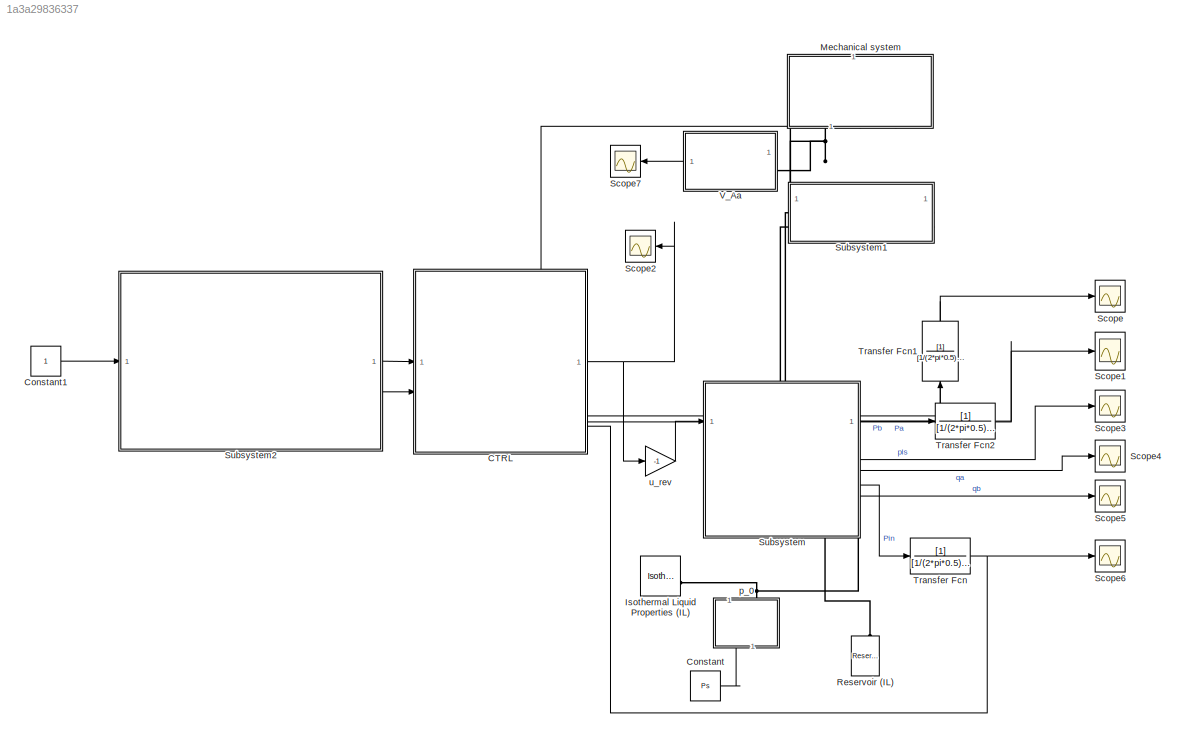
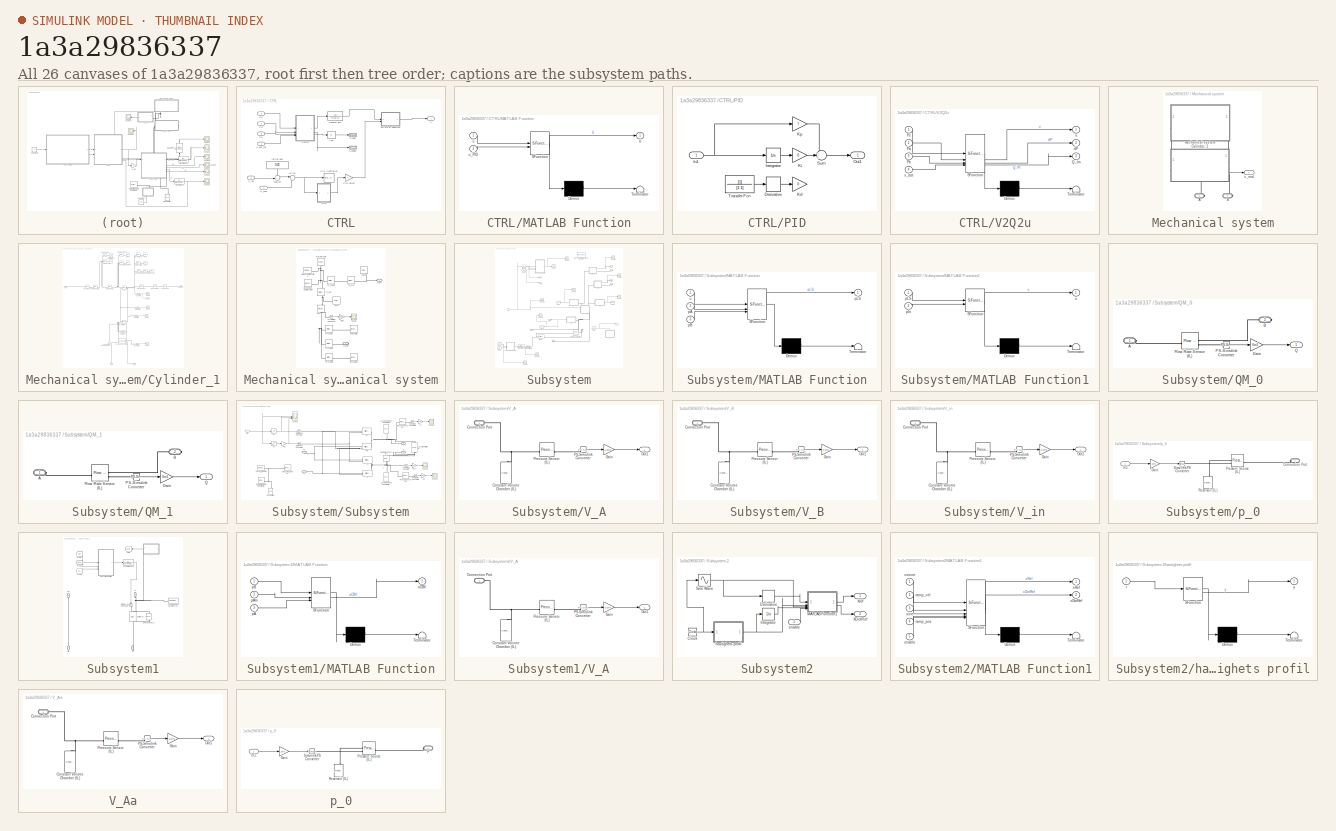
[diagram: thumbnail index - all 26 canvases of the model, root first then tree order]
MODEL slx_1a3a29836337
KIND model
CONFIG AbsTol = auto
CONFIG EnableMultiTasking = off
CONFIG FixedStep = auto
CONFIG MaxStep = auto
CONFIG MinStep = auto
CONFIG RelTol = 1e-5
CONFIG SampleTimeConstraint = Unconstrained
CONFIG SolverName = VariableStepAuto
CONFIG StartTime = 0.0
CONFIG StopTime = 20
WORKSPACE source: MATLAB code (in-file)
WORKSPACE rho_l = 850
WORKSPACE Ps = 110
WORKSPACE pRat = 30e5  (= 3000000)
WORKSPACE Cd = 0.6
WORKSPACE QRat = 270/6e4  (= 0.0045)
WORKSPACE Admax = QRat/Cd/(2/rho_l*pRat/2)^0.5  (= 0.00012624381173)
WORKSPACE sC_1 = 0.45
WORKSPACE L0C_1 = 0.4
WORKSPACE x0C_1 = 0.2
WORKSPACE dC_1 = 0.065
WORKSPACE dRC_1 = 0.035
WORKSPACE dOC_1 = dC_1 + dC_1/4  (= 0.08125)
WORKSPACE LC_1 = sC_1 + L0C_1/3  (= 0.583333333333)
WORKSPACE tEPC_1 = L0C_1/6  (= 0.0666666666667)
WORKSPACE dJC_1 = L0C_1/3  (= 0.133333333333)
WORKSPACE LJC_1 = dRC_1  (= 0.035)
WORKSPACE LRC_1 = sC_1 + tEPC_1  (= 0.516666666667)
WORKSPACE tPC_1 = L0C_1/3  (= 0.133333333333)
WORKSPACE AC_1 = pi*dC_1^2/4  (= 0.00331830724035)
WORKSPACE ARC_1 = pi*dRC_1^2/4  (= 0.000962112750162)
WORKSPACE AAC_1 = AC_1 - ARC_1  (= 0.00235619449019)
WORKSPACE Initial_Pos = x0C_1-0.116  (= 0.084)
WORKSPACE g = 9.81
WORKSPACE theta1_init = 0*pi/180  (= 0)
WORKSPACE thetaDot1_init = 0
WORKSPACE L1 = 3.625
WORKSPACE rho = 7800
WORKSPACE L4 = 0.229
WORKSPACE Lg4x = L1-L4/2  (= 3.5105)
WORKSPACE Lg4y = 0.08157
WORKSPACE abx = 0.730-0.100-0.080  (= 0.55)
WORKSPACE aby = (0.223-0.075)  (= 0.148)
WORKSPACE g = 9.81
WORKSPACE G1 = 100*g  (= 981)
WORKSPACE G4 = (4*76+16)*g  (= 3139.2)
WORKSPACE G = 440*g  (= 4316.4)
WORKSPACE Gx = 3.03499
WORKSPACE Gy = 0.140  (= 0.14)
WORKSPACE Cy = -1.040  (= -1.04)
WORKSPACE Cx = 0.427
WORKSPACE ang_CA = atan2(Cy,Cx)
WORKSPACE ang_k = atan2(aby,abx)
WORKSPACE b = abs(sqrt(Cy^2+Cx^2))
WORKSPACE c = abs(sqrt(abx^2+aby^2))
WORKSPACE L3_min = 0.772
WORKSPACE L3 = L3_min+Initial_Pos  (= 0.856)
WORKSPACE ang_C = acos((L3^2+b^2-c^2)/(2*L3*b))
WORKSPACE beta = ang_CA + pi - ang_C
WORKSPACE bx = L3*cos(beta) + Cx
WORKSPACE by = L3*sin(beta) + Cy
WORKSPACE ang_AB = atan2(by,bx)
WORKSPACE gamma = ang_AB + ang_k
WORKSPACE code: r_cb = [L3*cos(beta);L3*sin(beta);0];
WORKSPACE code: r_ab = [bx; by; 0 ];
WORKSPACE code: crs_abp = cross(r_ab, [cos(beta); sin(beta);0]);
WORKSPACE matrix = [1, 0, cos(beta)
WORKSPACE code: 0, 1, sin(beta);
WORKSPACE code: 0, 0, r_ab(1)*sin(beta) - r_ab(2)*cos(beta)];
WORKSPACE code: right = [0;(G1+G4);G*(Gx*cos(gamma)-Gy*sin(gamma))];%(G1*cos(gamma)*L1/2+G4*(cos(gamma)*Lg4x-sin(gamma)*Lg4y))
WORKSPACE ANS = inv(matrix)*right
WORKSPACE Ax = ANS(1)
WORKSPACE Ay = ANS(2)
WORKSPACE Fl = ANS(3)
WORKSPACE dP_0 = 7e5  (= 700000)
WORKSPACE phi = 0.7130  (= 0.713)
WORKSPACE A = AC_1  (= 0.00331830724035)
WORKSPACE Ar = AAC_1  (= 0.00235619449019)
WORKSPACE BW = 0
WORKSPACE SpoolTravel = 7
WORKSPACE a = (SpoolTravel-BW)/25  (= 0.28)
WORKSPACE DeadUp = 0.13
WORKSPACE DeadDown = 0.12
WORKSPACE F_friction = 1133.4
WORKSPACE U_down_vec = [0, DeadDown ,0.2, 0.4, 0.6, 0.7, 0.8, 1.0]
WORKSPACE K_down = [1e-5,1e-5,0.75,2.17,3.39,3.99,4.55,4.84]/(6e4 * sqrt(1e5))
WORKSPACE Ad_down = (K_down/(Cd*sqrt(2/rho_l))) *1e6
WORKSPACE U_up_vec = [0, DeadUp ,0.2, 0.4, 0.6, 0.7, 0.8, 1.0]
WORKSPACE K_up = [1e-5,1e-5,0.78,2.29,3.42,4.59,5.09,5.71]/(6e4 * sqrt(1e5))
WORKSPACE Ad_up = (K_up/(Cd*sqrt(2/rho_l))) *1e6
WORKSPACE Amp = 0.1
WORKSPACE Mean = Amp  (= 0.1)
BLOCK [SubSystem] CTRL
  PortSchema = {"entries":[{"content":{"sides":[{"content":{"connectorIds":["In1","In2"]},"type":"ConnectorPlacement.EquallySpacedRectSide","uuid":"e7dc98bc-0c39-42fc-9d44-5c528a861935"},{"content":{"connectorIds":["In4","In5","Out1","In6"],"side":"RIGHT"},"type":"ConnectorPlacement.EquallySpacedRectSide","uuid":"7a7fb2e4-7f4e-4840-80a8-3a9723ecfbf6"},{"content":{"connectorIds":["In3"],"side":"TOP"},"type":"Conn...<+269ch>
BLOCK [Abs] CTRL/Abs
  SaturateOnIntegerOverflow = off
BLOCK [Sum] CTRL/Error
  Inputs = |+-
BLOCK [SubSystem] CTRL/MATLAB Function
  ErrorFcn = Stateflow.Translate.translate
  PermitHierarchicalResolution = ExplicitOnly
  SFBlockType = MATLAB Function
  TreatAsAtomicUnit = on
BLOCK [Demux] CTRL/MATLAB Function/ Demux 
  Outputs = 1
BLOCK [S-Function] CTRL/MATLAB Function/ SFunction 
  EnableBusSupport = on
  FunctionName = sf_sfun
  Parameters = DeadDown,DeadUp
  PortCounts = [2 2]
  SFcnIsStateOwnerBlock = off
  SFunctionDeploymentMode = off
  Tag = Stateflow S-Function 7
BLOCK [Terminator] CTRL/MATLAB Function/ Terminator 
BLOCK [Outport] CTRL/MATLAB Function/U
BLOCK [Inport] CTRL/MATLAB Function/u
BLOCK [Inport] CTRL/MATLAB Function/u_PID
  Port = 2
BLOCK [SubSystem] CTRL/PID
BLOCK [Reference] CTRL/PID Controller  REF=slpidlib/PID Controller
  Commented = on
  LibrarySourceBlock = simulink/Continuous/PID Controller
  SourceBlock = slpidlib/PID Controller
  SourceType = PID 1dof
BLOCK [Gain] CTRL/PID on//off
BLOCK [Derivative] CTRL/PID/Derivative
  Commented = on
BLOCK [Inport] CTRL/PID/In1
BLOCK [Integrator] CTRL/PID/Integrator
  Commented = on
BLOCK [Gain] CTRL/PID/Kd
  Commented = on
  Gain = 0
BLOCK [Gain] CTRL/PID/Ki
  Commented = on
  Gain = 0
BLOCK [Gain] CTRL/PID/Kp
  Gain = 7
BLOCK [Outport] CTRL/PID/Out1
BLOCK [Sum] CTRL/PID/Sum
  Inputs = +++
BLOCK [TransferFcn] CTRL/PID/Transfer Fcn
  Commented = on
  Denominator = [1 1]
BLOCK [Inport] CTRL/Pa
  Port = 4
BLOCK [Inport] CTRL/Pb
  Port = 5
BLOCK [Inport] CTRL/Ps
  Port = 6
BLOCK [Scope] CTRL/Scope
  Floating = off
  NumInputPorts = 1
  ScopeSpecificationString = Simulink.scopes.TimeScopeBlockCfg('CurrentConfiguration', extmgr.ConfigurationSet(extmgr.Configuration('Core','General UI',true),extmgr.Configuration('Core','Source UI',true),extmgr.Configuration('Sources','WiredSimulink',true,'DataLoggingVariableName','ScopeData1'),extmgr.Configuration('Visuals','Time Domain',true,'SerializedDisplays',{struct('MinYLimReal','-2.4825','MaxYLimReal','22.3425','YLabe...<+1491ch>
BLOCK [Scope] CTRL/Scope1
  Floating = off
  NumInputPorts = 1
  ScopeSpecificationString = Simulink.scopes.TimeScopeBlockCfg('CurrentConfiguration', extmgr.ConfigurationSet(extmgr.Configuration('Core','General UI',true),extmgr.Configuration('Core','Source UI',true),extmgr.Configuration('Sources','WiredSimulink',true,'DataLoggingVariableName','ScopeData2'),extmgr.Configuration('Visuals','Time Domain',true,'SerializedDisplays',{struct('MinYLimReal','-2212552.63139','MaxYLimReal','19912973...<+1872ch>
BLOCK [TransferFcn] CTRL/Transfer Fcn
  Denominator = [0.01 1]
BLOCK [SubSystem] CTRL/V2Q2u
  ErrorFcn = Stateflow.Translate.translate
  PermitHierarchicalResolution = ExplicitOnly
  SFBlockType = MATLAB Function
  TreatAsAtomicUnit = on
BLOCK [Demux] CTRL/V2Q2u/ Demux 
  Outputs = 1
BLOCK [S-Function] CTRL/V2Q2u/ SFunction 
  EnableBusSupport = on
  FunctionName = sf_sfun
  Parameters = A,Ar,DeadDown,DeadUp
  PortCounts = [4 4]
  SFcnIsStateOwnerBlock = off
  SFunctionDeploymentMode = off
  Tag = Stateflow S-Function 5
BLOCK [Terminator] CTRL/V2Q2u/ Terminator 
BLOCK [Inport] CTRL/V2Q2u/Pa
  Port = 2
BLOCK [Inport] CTRL/V2Q2u/Pb
  Port = 3
BLOCK [Inport] CTRL/V2Q2u/Ps
BLOCK [Outport] CTRL/V2Q2u/Q_lm
  Port = 3
BLOCK [Outport] CTRL/V2Q2u/dP
  Port = 2
BLOCK [Outport] CTRL/V2Q2u/u
BLOCK [Inport] CTRL/V2Q2u/x_dot
  Port = 4
BLOCK [Inport] CTRL/X_dot_ref
  Port = 2
BLOCK [Inport] CTRL/X_real
  Port = 3
BLOCK [Inport] CTRL/X_ref
BLOCK [Constant] CTRL/initial pos
  NameLocation = top
  Value = 0.05
BLOCK [Sum] CTRL/pos_ref
  Inputs = ++|
BLOCK [Outport] CTRL/u
BLOCK [Constant] Constant
  Value = Ps
BLOCK [Constant] Constant1
BLOCK [Reference] Isothermal Liquid Properties (IL)  REF=fl_lib/Isothermal Liquid/Utilities/Isothermal Liquid
Properties (IL)
  SourceBlock = fl_lib/Isothermal Liquid/Utilities/Isothermal Liquid\nProperties (IL)
  SourceType = Isothermal Liquid\nProperties (IL)
BLOCK [SubSystem] Mechanical system
  NameLocation = top
  PortSchema = {"entries":[{"content":{"sides":[{"content":{},"type":"ConnectorPlacement.EquallySpacedRectSide","uuid":"e7d79fdb-c1af-44b7-bd08-96b300e6958a"},{"content":{"connectorIds":["RConn1","RConn2"],"side":"RIGHT"},"type":"ConnectorPlacement.EquallySpacedRectSide","uuid":"9182fec9-179c-4b8b-a801-95a4bf7282c9"},{"content":{"connectorIds":["Out1"],"side":"TOP"},"type":"ConnectorPlacement.EquallySpacedRectSi...<+235ch>
BLOCK [PMIOPort] Mechanical system/A
  Side = Right
BLOCK [PMIOPort] Mechanical system/B
  Port = 2
  Side = Right
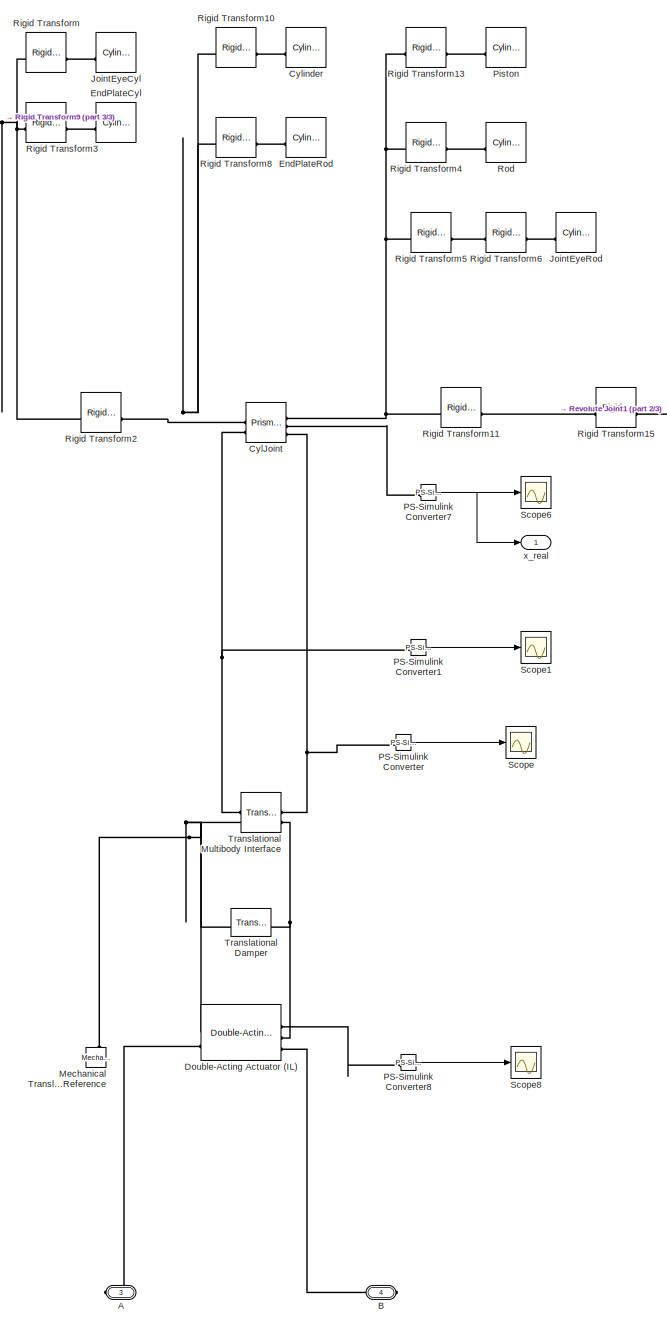
[diagram: Mechanical system/Cylinder_1 - part 1/3, center side, full height]
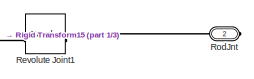
[diagram: Mechanical system/Cylinder_1 - part 2/3, top right region]
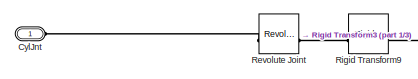
[diagram: Mechanical system/Cylinder_1 - part 3/3, top left region]
BLOCK [SubSystem] Mechanical system/Cylinder_1
  PortSchema = {"entries":[{"content":{"sides":[{"content":{"connectorIds":["LConn1"]},"type":"ConnectorPlacement.EquallySpacedRectSide","uuid":"0d78c50f-9421-405f-914f-ba400f0edc4e"},{"content":{"connectorIds":["RConn1","Out1"],"side":"RIGHT"},"type":"ConnectorPlacement.EquallySpacedRectSide","uuid":"3613fe88-8080-4676-8b90-d4f5ec3e9571"},{"content":{"side":"TOP"},"type":"ConnectorPlacement.EquallySpacedRectSid...<+395ch>
BLOCK [PMIOPort] Mechanical system/Cylinder_1/A
  Port = 3
  Side = Right
BLOCK [PMIOPort] Mechanical system/Cylinder_1/B
  Port = 4
  Side = Right
BLOCK [PMIOPort] Mechanical system/Cylinder_1/CylJnt
  Side = Left
BLOCK [Reference] Mechanical system/Cylinder_1/CylJoint  REF=sm_lib/Joints/Prismatic
Joint
  SourceBlock = sm_lib/Joints/Prismatic\nJoint
  SourceType = Prismatic\nJoint
BLOCK [Reference] Mechanical system/Cylinder_1/Cylinder  REF=sm_lib/Body Elements/Cylindrical Solid
  SourceBlock = sm_lib/Body Elements/Cylindrical Solid
  SourceType = Cylindrical Solid
BLOCK [Reference] Mechanical system/Cylinder_1/Double-Acting Actuator (IL)  REF=SimscapeFluids_lib/Isothermal Liquid/Actuators/Double-Acting
Actuator (IL)
  SourceBlock = SimscapeFluids_lib/Isothermal Liquid/Actuators/Double-Acting\nActuator (IL)
  SourceType = Double-Acting\nActuator (IL)
BLOCK [Reference] Mechanical system/Cylinder_1/EndPlateCyl  REF=sm_lib/Body Elements/Cylindrical Solid
  SourceBlock = sm_lib/Body Elements/Cylindrical Solid
  SourceType = Cylindrical Solid
BLOCK [Reference] Mechanical system/Cylinder_1/EndPlateRod  REF=sm_lib/Body Elements/Cylindrical Solid
  SourceBlock = sm_lib/Body Elements/Cylindrical Solid
  SourceType = Cylindrical Solid
BLOCK [Reference] Mechanical system/Cylinder_1/JointEyeCyl  REF=sm_lib/Body Elements/Cylindrical Solid
  SourceBlock = sm_lib/Body Elements/Cylindrical Solid
  SourceType = Cylindrical Solid
BLOCK [Reference] Mechanical system/Cylinder_1/JointEyeRod  REF=sm_lib/Body Elements/Cylindrical Solid
  SourceBlock = sm_lib/Body Elements/Cylindrical Solid
  SourceType = Cylindrical Solid
BLOCK [Reference] Mechanical system/Cylinder_1/Mechanical Translational Reference  REF=fl_lib/Mechanical/Translational
Elements/Mechanical
Translational
Reference
  NameLocation = right
  SourceBlock = fl_lib/Mechanical/Translational\nElements/Mechanical\nTranslational\nReference
  SourceType = Mechanical\nTranslational\nReference
BLOCK [Reference] Mechanical system/Cylinder_1/PS-Simulink Converter  REF=nesl_utility/PS-Simulink
Converter
  SourceBlock = nesl_utility/PS-Simulink\nConverter
  SourceType = PS-Simulink\nConverter
BLOCK [Reference] Mechanical system/Cylinder_1/PS-Simulink Converter1  REF=nesl_utility/PS-Simulink
Converter
  SourceBlock = nesl_utility/PS-Simulink\nConverter
  SourceType = PS-Simulink\nConverter
BLOCK [Reference] Mechanical system/Cylinder_1/PS-Simulink Converter7  REF=nesl_utility/PS-Simulink
Converter
  SourceBlock = nesl_utility/PS-Simulink\nConverter
  SourceType = PS-Simulink\nConverter
BLOCK [Reference] Mechanical system/Cylinder_1/PS-Simulink Converter8  REF=nesl_utility/PS-Simulink
Converter
  SourceBlock = nesl_utility/PS-Simulink\nConverter
  SourceType = PS-Simulink\nConverter
BLOCK [Reference] Mechanical system/Cylinder_1/Piston  REF=sm_lib/Body Elements/Cylindrical Solid
  SourceBlock = sm_lib/Body Elements/Cylindrical Solid
  SourceType = Cylindrical Solid
BLOCK [Reference] Mechanical system/Cylinder_1/Revolute Joint  REF=sm_lib/Joints/Revolute Joint
  SourceBlock = sm_lib/Joints/Revolute Joint
  SourceType = Revolute Joint
BLOCK [Reference] Mechanical system/Cylinder_1/Revolute Joint1  REF=sm_lib/Joints/Revolute Joint
  SourceBlock = sm_lib/Joints/Revolute Joint
  SourceType = Revolute Joint
BLOCK [Reference] Mechanical system/Cylinder_1/Rigid Transform  REF=sm_lib/Frames and
Transforms/Rigid
Transform
  SourceBlock = sm_lib/Frames and\nTransforms/Rigid\nTransform
  SourceType = Rigid\nTransform
BLOCK [Reference] Mechanical system/Cylinder_1/Rigid Transform10  REF=sm_lib/Frames and
Transforms/Rigid
Transform
  SourceBlock = sm_lib/Frames and\nTransforms/Rigid\nTransform
  SourceType = Rigid\nTransform
BLOCK [Reference] Mechanical system/Cylinder_1/Rigid Transform11  REF=sm_lib/Frames and
Transforms/Rigid
Transform
  SourceBlock = sm_lib/Frames and\nTransforms/Rigid\nTransform
  SourceType = Rigid\nTransform
BLOCK [Reference] Mechanical system/Cylinder_1/Rigid Transform13  REF=sm_lib/Frames and
Transforms/Rigid
Transform
  SourceBlock = sm_lib/Frames and\nTransforms/Rigid\nTransform
  SourceType = Rigid\nTransform
BLOCK [Reference] Mechanical system/Cylinder_1/Rigid Transform15  REF=sm_lib/Frames and
Transforms/Rigid
Transform
  SourceBlock = sm_lib/Frames and\nTransforms/Rigid\nTransform
  SourceType = Rigid\nTransform
BLOCK [Reference] Mechanical system/Cylinder_1/Rigid Transform2  REF=sm_lib/Frames and
Transforms/Rigid
Transform
  SourceBlock = sm_lib/Frames and\nTransforms/Rigid\nTransform
  SourceType = Rigid\nTransform
BLOCK [Reference] Mechanical system/Cylinder_1/Rigid Transform3  REF=sm_lib/Frames and
Transforms/Rigid
Transform
  SourceBlock = sm_lib/Frames and\nTransforms/Rigid\nTransform
  SourceType = Rigid\nTransform
BLOCK [Reference] Mechanical system/Cylinder_1/Rigid Transform4  REF=sm_lib/Frames and
Transforms/Rigid
Transform
  SourceBlock = sm_lib/Frames and\nTransforms/Rigid\nTransform
  SourceType = Rigid\nTransform
BLOCK [Reference] Mechanical system/Cylinder_1/Rigid Transform5  REF=sm_lib/Frames and
Transforms/Rigid
Transform
  SourceBlock = sm_lib/Frames and\nTransforms/Rigid\nTransform
  SourceType = Rigid\nTransform
BLOCK [Reference] Mechanical system/Cylinder_1/Rigid Transform6  REF=sm_lib/Frames and
Transforms/Rigid
Transform
  SourceBlock = sm_lib/Frames and\nTransforms/Rigid\nTransform
  SourceType = Rigid\nTransform
BLOCK [Reference] Mechanical system/Cylinder_1/Rigid Transform8  REF=sm_lib/Frames and
Transforms/Rigid
Transform
  SourceBlock = sm_lib/Frames and\nTransforms/Rigid\nTransform
  SourceType = Rigid\nTransform
BLOCK [Reference] Mechanical system/Cylinder_1/Rigid Transform9  REF=sm_lib/Frames and
Transforms/Rigid
Transform
  SourceBlock = sm_lib/Frames and\nTransforms/Rigid\nTransform
  SourceType = Rigid\nTransform
BLOCK [Reference] Mechanical system/Cylinder_1/Rod  REF=sm_lib/Body Elements/Cylindrical Solid
  SourceBlock = sm_lib/Body Elements/Cylindrical Solid
  SourceType = Cylindrical Solid
BLOCK [PMIOPort] Mechanical system/Cylinder_1/RodJnt
  Port = 2
  Side = Right
BLOCK [Scope] Mechanical system/Cylinder_1/Scope
  Floating = off
  NumInputPorts = 1
  ScopeSpecificationString = Simulink.scopes.TimeScopeBlockCfg('CurrentConfiguration', extmgr.ConfigurationSet(extmgr.Configuration('Core','General UI',true),extmgr.Configuration('Core','Source UI',true),extmgr.Configuration('Sources','WiredSimulink',true),extmgr.Configuration('Visuals','Time Domain',true,'SerializedDisplays',{struct('MinYLimReal','-0.26505','MaxYLimReal','0.18854','YLabelReal','','MinYLimMag','0.00000','MaxY...<+1472ch>
BLOCK [Scope] Mechanical system/Cylinder_1/Scope1
  Floating = off
  NumInputPorts = 1
  ScopeSpecificationString = Simulink.scopes.TimeScopeBlockCfg('CurrentConfiguration', extmgr.ConfigurationSet(extmgr.Configuration('Core','General UI',true),extmgr.Configuration('Core','Source UI',true),extmgr.Configuration('Sources','WiredSimulink',true,'DataLoggingVariableName','ScopeData2'),extmgr.Configuration('Visuals','Time Domain',true,'SerializedDisplays',{struct('MinYLimReal','8610.5141','MaxYLimReal','28610.5141','...<+1543ch>
BLOCK [Scope] Mechanical system/Cylinder_1/Scope6
  Floating = off
  NumInputPorts = 1
  ScopeSpecificationString = Simulink.scopes.TimeScopeBlockCfg('CurrentConfiguration', extmgr.ConfigurationSet(extmgr.Configuration('Core','General UI',true),extmgr.Configuration('Core','Source UI',true),extmgr.Configuration('Sources','WiredSimulink',true,'DataLoggingVariableName','ScopeData6'),extmgr.Configuration('Visuals','Time Domain',true,'SerializedDisplays',{struct('MinYLimReal','0.07409','MaxYLimReal','0.09409','YLabe...<+1510ch>
BLOCK [Scope] Mechanical system/Cylinder_1/Scope8
  Floating = off
  NumInputPorts = 1
  ScopeSpecificationString = Simulink.scopes.TimeScopeBlockCfg('CurrentConfiguration', extmgr.ConfigurationSet(extmgr.Configuration('Core','General UI',true),extmgr.Configuration('Core','Source UI',true),extmgr.Configuration('Sources','WiredSimulink',true,'DataLoggingVariableName','ScopeData8'),extmgr.Configuration('Visuals','Time Domain',true,'SerializedDisplays',{struct('MinYLimReal','0.17393','MaxYLimReal','0.42901','YLabe...<+1834ch>
BLOCK [Reference] Mechanical system/Cylinder_1/Translational Damper  REF=fl_lib/Mechanical/Translational
Elements/Translational Damper
  Commented = on
  SourceBlock = fl_lib/Mechanical/Translational\nElements/Translational Damper
  SourceType = Translational Damper
BLOCK [Reference] Mechanical system/Cylinder_1/Translational Multibody Interface  REF=fl_lib/Mechanical/Multibody Interfaces/Translational
Multibody Interface
  SourceBlock = fl_lib/Mechanical/Multibody Interfaces/Translational\nMultibody Interface
  SourceType = Translational\nMultibody Interface
BLOCK [Outport] Mechanical system/Cylinder_1/x_real
BLOCK [SubSystem] Mechanical system/mechanical system
BLOCK [Reference] Mechanical system/mechanical system/Base  REF=sm_lib/Body Elements/Cylindrical Solid
  SourceBlock = sm_lib/Body Elements/Cylindrical Solid
  SourceType = Cylindrical Solid
BLOCK [Reference] Mechanical system/mechanical system/Base1  REF=sm_lib/Body Elements/Cylindrical Solid
  NameLocation = right
  SourceBlock = sm_lib/Body Elements/Cylindrical Solid
  SourceType = Cylindrical Solid
BLOCK [Reference] Mechanical system/mechanical system/Brick Solid  REF=sm_lib/Body Elements/Brick Solid
  NameLocation = top
  SourceBlock = sm_lib/Body Elements/Brick Solid
  SourceType = Brick Solid
BLOCK [Reference] Mechanical system/mechanical system/Brick Solid1  REF=sm_lib/Body Elements/Brick Solid
  NameLocation = top
  SourceBlock = sm_lib/Body Elements/Brick Solid
  SourceType = Brick Solid
BLOCK [PMIOPort] Mechanical system/mechanical system/CylJnt
  NameLocation = top
  Side = Left
BLOCK [PMIOPort] Mechanical system/mechanical system/CylJnt1
  NameLocation = top
  Port = 2
  Side = Right
BLOCK [Gain] Mechanical system/mechanical system/Gain
  Gain = 180/pi
BLOCK [Reference] Mechanical system/mechanical system/Mechanism Configuration  REF=sm_lib/Utilities/Mechanism
Configuration
  SourceBlock = sm_lib/Utilities/Mechanism\nConfiguration
  SourceType = Mechanism\nConfiguration
BLOCK [Reference] Mechanical system/mechanical system/PS-Simulink Converter  REF=nesl_utility/PS-Simulink
Converter
  SourceBlock = nesl_utility/PS-Simulink\nConverter
  SourceType = PS-Simulink\nConverter
BLOCK [Reference] Mechanical system/mechanical system/RJ1  REF=sm_lib/Joints/Revolute Joint
  NameLocation = right
  SourceBlock = sm_lib/Joints/Revolute Joint
  SourceType = Revolute Joint
BLOCK [Scope] Mechanical system/mechanical system/Scope
  Floating = off
  NumInputPorts = 1
  ScopeSpecificationString = Simulink.scopes.TimeScopeBlockCfg('CurrentConfiguration', extmgr.ConfigurationSet(extmgr.Configuration('Core','General UI',true),extmgr.Configuration('Core','Source UI',true),extmgr.Configuration('Sources','WiredSimulink',true),extmgr.Configuration('Visuals','Time Domain',true,'SerializedDisplays',{struct('MinYLimReal','-202.3624','MaxYLimReal','22.48471','YLabelReal','','MinYLimMag',' 0.00000','M...<+1456ch>
BLOCK [Reference] Mechanical system/mechanical system/Solver Configuration  REF=nesl_utility/Solver
Configuration
  SourceBlock = nesl_utility/Solver\nConfiguration
  SourceType = Solver\nConfiguration
BLOCK [Reference] Mechanical system/mechanical system/TF_CylMC  REF=sm_lib/Frames and
Transforms/Rigid
Transform
  SourceBlock = sm_lib/Frames and\nTransforms/Rigid\nTransform
  SourceType = Rigid\nTransform
BLOCK [Reference] Mechanical system/mechanical system/TF_CylMC1  REF=sm_lib/Frames and
Transforms/Rigid
Transform
  SourceBlock = sm_lib/Frames and\nTransforms/Rigid\nTransform
  SourceType = Rigid\nTransform
BLOCK [Reference] Mechanical system/mechanical system/TF_CylMC2  REF=sm_lib/Frames and
Transforms/Rigid
Transform
  SourceBlock = sm_lib/Frames and\nTransforms/Rigid\nTransform
  SourceType = Rigid\nTransform
BLOCK [Reference] Mechanical system/mechanical system/TF_CylMC3  REF=sm_lib/Frames and
Transforms/Rigid
Transform
  SourceBlock = sm_lib/Frames and\nTransforms/Rigid\nTransform
  SourceType = Rigid\nTransform
BLOCK [Reference] Mechanical system/mechanical system/TF_RJ1  REF=sm_lib/Frames and
Transforms/Rigid
Transform
  NameLocation = left
  SourceBlock = sm_lib/Frames and\nTransforms/Rigid\nTransform
  SourceType = Rigid\nTransform
BLOCK [Reference] Mechanical system/mechanical system/TF_RJ2  REF=sm_lib/Frames and
Transforms/Rigid
Transform
  SourceBlock = sm_lib/Frames and\nTransforms/Rigid\nTransform
  SourceType = Rigid\nTransform
BLOCK [Reference] Mechanical system/mechanical system/World Frame  REF=sm_lib/Frames and
Transforms/World Frame
  NameLocation = right
  SourceBlock = sm_lib/Frames and\nTransforms/World Frame
  SourceType = World Frame
BLOCK [Outport] Mechanical system/x_real
BLOCK [Reference] Reservoir (IL)  REF=fl_lib/Isothermal Liquid/Elements/Reservoir (IL)
  NameLocation = right
  SourceBlock = fl_lib/Isothermal Liquid/Elements/Reservoir (IL)
  SourceType = Reservoir (IL)
BLOCK [Scope] Scope
  Floating = off
  NumInputPorts = 1
  ScopeSpecificationString = Simulink.scopes.TimeScopeBlockCfg('CurrentConfiguration', extmgr.ConfigurationSet(extmgr.Configuration('Core','General UI',true),extmgr.Configuration('Core','Source UI',true),extmgr.Configuration('Sources','WiredSimulink',true,'DataLoggingVariableName','ScopeData1'),extmgr.Configuration('Visuals','Time Domain',true,'SerializedDisplays',{struct('MinYLimReal','-18.271','MaxYLimReal','164.43903','YLa...<+1533ch>
BLOCK [Scope] Scope1
  Floating = off
  NumInputPorts = 1
  ScopeSpecificationString = Simulink.scopes.TimeScopeBlockCfg('CurrentConfiguration', extmgr.ConfigurationSet(extmgr.Configuration('Core','General UI',true),extmgr.Configuration('Core','Source UI',true),extmgr.Configuration('Sources','WiredSimulink',true,'DataLoggingVariableName','ScopeData2'),extmgr.Configuration('Visuals','Time Domain',true,'SerializedDisplays',{struct('MinYLimReal','-17.54597','MaxYLimReal','157.91375','Y...<+1536ch>
BLOCK [Scope] Scope2
  Floating = off
  NameLocation = top
  NumInputPorts = 1
  ScopeSpecificationString = Simulink.scopes.TimeScopeBlockCfg('CurrentConfiguration', extmgr.ConfigurationSet(extmgr.Configuration('Core','General UI',true),extmgr.Configuration('Core','Source UI',true),extmgr.Configuration('Sources','WiredSimulink',true,'DataLoggingVariableName','ScopeData5'),extmgr.Configuration('Visuals','Time Domain',true,'SerializedDisplays',{struct('MinYLimReal','-0.79519','MaxYLimReal','0.99713','YLab...<+1510ch>
BLOCK [Scope] Scope3
  Floating = off
  NumInputPorts = 1
  ScopeSpecificationString = Simulink.scopes.TimeScopeBlockCfg('CurrentConfiguration', extmgr.ConfigurationSet(extmgr.Configuration('Core','General UI',true),extmgr.Configuration('Core','Source UI',true),extmgr.Configuration('Sources','WiredSimulink',true,'DataLoggingVariableName','ScopeData3'),extmgr.Configuration('Visuals','Time Domain',true,'SerializedDisplays',{struct('MinYLimReal','-1.00000','MaxYLimReal','1.00000','YLab...<+1553ch>
BLOCK [Scope] Scope4
  Floating = off
  NumInputPorts = 1
  ScopeSpecificationString = Simulink.scopes.TimeScopeBlockCfg('CurrentConfiguration', extmgr.ConfigurationSet(extmgr.Configuration('Core','General UI',true),extmgr.Configuration('Core','Source UI',true),extmgr.Configuration('Sources','WiredSimulink',true,'DataLoggingVariableName','ScopeData4'),extmgr.Configuration('Visuals','Time Domain',true,'SerializedDisplays',{struct('MinYLimReal','-41.6179','MaxYLimReal','28.81149','YLa...<+1494ch>
BLOCK [Scope] Scope5
  Floating = off
  NumInputPorts = 1
  ScopeSpecificationString = Simulink.scopes.TimeScopeBlockCfg('CurrentConfiguration', extmgr.ConfigurationSet(extmgr.Configuration('Core','General UI',true),extmgr.Configuration('Core','Source UI',true),extmgr.Configuration('Sources','WiredSimulink',true,'DataLoggingVariableName','ScopeData5'),extmgr.Configuration('Visuals','Time Domain',true,'SerializedDisplays',{struct('MinYLimReal','-24.2798','MaxYLimReal','22.60549','YLa...<+1494ch>
BLOCK [Scope] Scope6
  Floating = off
  NumInputPorts = 1
  ScopeSpecificationString = Simulink.scopes.TimeScopeBlockCfg('CurrentConfiguration', extmgr.ConfigurationSet(extmgr.Configuration('Core','General UI',true),extmgr.Configuration('Core','Source UI',true),extmgr.Configuration('Sources','WiredSimulink',true,'DataLoggingVariableName','ScopeData6'),extmgr.Configuration('Visuals','Time Domain',true,'SerializedDisplays',{struct('MinYLimReal','-22.15494','MaxYLimReal','199.39445','Y...<+1550ch>
BLOCK [Scope] Scope7
  Floating = off
  NameLocation = top
  NumInputPorts = 1
  ScopeSpecificationString = Simulink.scopes.TimeScopeBlockCfg('CurrentConfiguration', extmgr.ConfigurationSet(extmgr.Configuration('Core','General UI',true),extmgr.Configuration('Core','Source UI',true),extmgr.Configuration('Sources','WiredSimulink',true,'DataLoggingVariableName','ScopeData7'),extmgr.Configuration('Visuals','Time Domain',true,'SerializedDisplays',{struct('MinYLimReal','-22.46858','MaxYLimReal','202.26997','Y...<+1539ch>
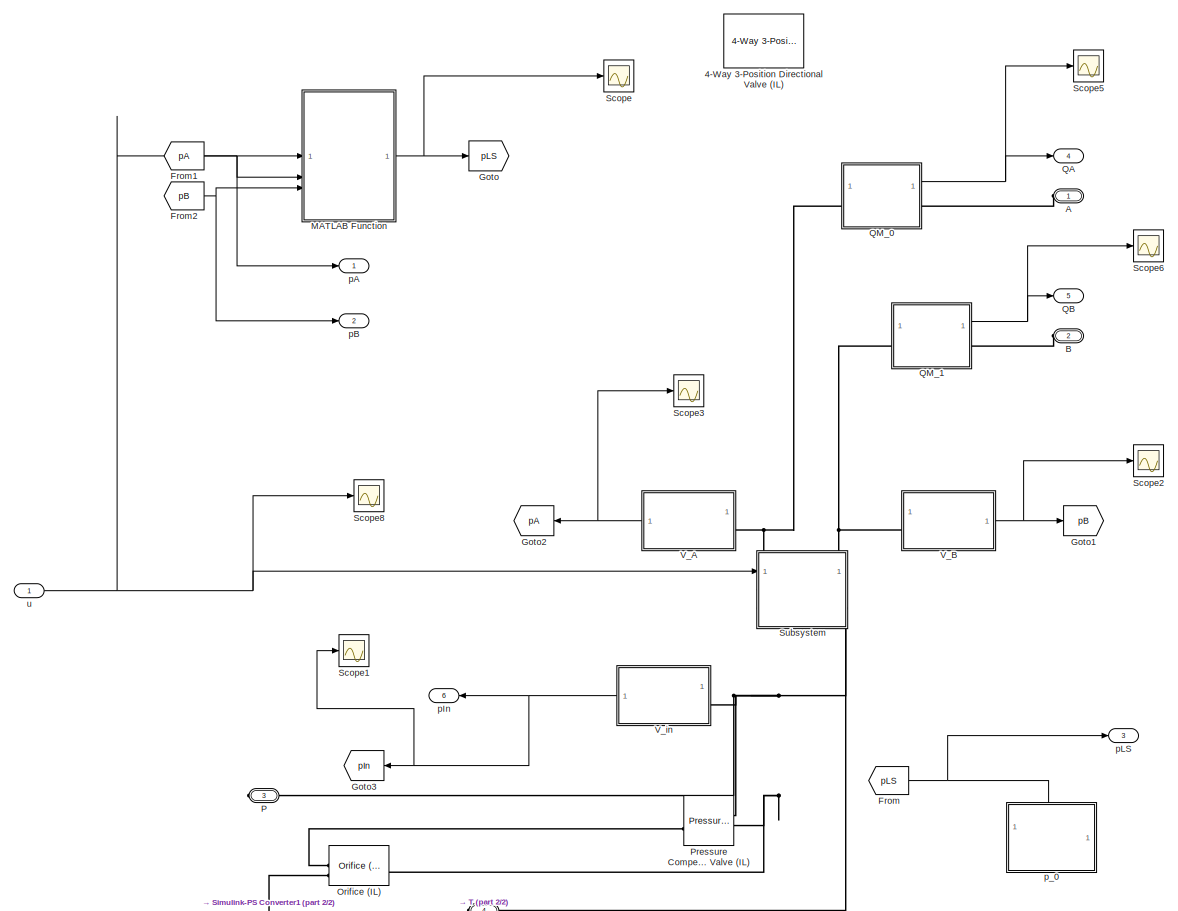
[diagram: Subsystem - part 1/2, most of the canvas]
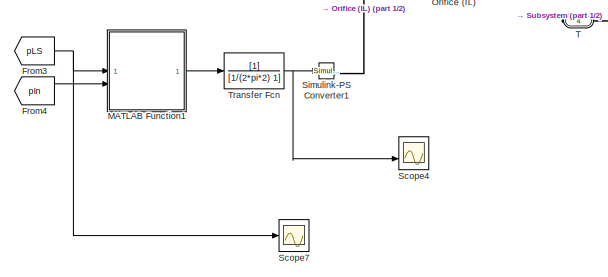
[diagram: Subsystem - part 2/2, bottom left region]
BLOCK [SubSystem] Subsystem
  PortSchema = {"entries":[{"content":{"sides":[{"content":{"connectorIds":["In1"]},"type":"ConnectorPlacement.EquallySpacedRectSide","uuid":"2106b7c6-6d92-4a39-9b3d-8951ce8b04e8"},{"content":{"connectorIds":["Out1","Out2","Out3","Out4","Out5","Out6"],"side":"RIGHT"},"type":"ConnectorPlacement.EquallySpacedRectSide","uuid":"760f4e6f-1347-4e69-a63e-1f73879098bb"},{"content":{"connectorIds":["LConn1","LConn2"],"si...<+453ch>
BLOCK [Reference] Subsystem/4-Way 3-Position Directional Valve (IL)  REF=SimscapeFluids_lib/Isothermal Liquid/Valves & Orifices/Directional Control
Valves/4-Way 3-Position
Directional Valve
(IL)
  Commented = on
  SourceBlock = SimscapeFluids_lib/Isothermal Liquid/Valves & Orifices/Directional Control\nValves/4-Way 3-Position\nDirectional Valve\n(IL)
  SourceType = 4-Way 3-Position\nDirectional Valve\n(IL)
BLOCK [PMIOPort] Subsystem/A
  Side = Left
BLOCK [PMIOPort] Subsystem/B
  Port = 2
  Side = Left
BLOCK [From] Subsystem/From
  Commented = on
  GotoTag = pLS
BLOCK [From] Subsystem/From1
  GotoTag = pA
  TagVisibility = global
BLOCK [From] Subsystem/From2
  GotoTag = pB
  TagVisibility = global
BLOCK [From] Subsystem/From3
  Commented = on
  GotoTag = pLS
BLOCK [From] Subsystem/From4
  Commented = on
  GotoTag = pIn
BLOCK [Goto] Subsystem/Goto
  GotoTag = pLS
BLOCK [Goto] Subsystem/Goto1
  GotoTag = pB
  TagVisibility = global
BLOCK [Goto] Subsystem/Goto2
  GotoTag = pA
  TagVisibility = global
BLOCK [Goto] Subsystem/Goto3
  GotoTag = pIn
BLOCK [SubSystem] Subsystem/MATLAB Function
  ErrorFcn = Stateflow.Translate.translate
  LibrarySourceBlock = simulink/User-Defined\nFunctions/MATLAB Function
  PermitHierarchicalResolution = ExplicitOnly
  SFBlockType = MATLAB Function
  TreatAsAtomicUnit = on
BLOCK [Demux] Subsystem/MATLAB Function/ Demux 
  Outputs = 1
BLOCK [S-Function] Subsystem/MATLAB Function/ SFunction 
  EnableBusSupport = on
  FunctionName = sf_sfun
  PortCounts = [3 2]
  SFcnIsStateOwnerBlock = off
  SFunctionDeploymentMode = off
  Tag = Stateflow S-Function 6
BLOCK [Terminator] Subsystem/MATLAB Function/ Terminator 
BLOCK [Inport] Subsystem/MATLAB Function/pA
  Port = 2
BLOCK [Inport] Subsystem/MATLAB Function/pB
  Port = 3
BLOCK [Outport] Subsystem/MATLAB Function/pLS
BLOCK [Inport] Subsystem/MATLAB Function/u
BLOCK [SubSystem] Subsystem/MATLAB Function1
  Commented = on
  ErrorFcn = Stateflow.Translate.translate
  PermitHierarchicalResolution = ExplicitOnly
  SFBlockType = MATLAB Function
  TreatAsAtomicUnit = on
BLOCK [Demux] Subsystem/MATLAB Function1/ Demux 
  Outputs = 1
BLOCK [S-Function] Subsystem/MATLAB Function1/ SFunction 
  EnableBusSupport = on
  FunctionName = sf_sfun
  PortCounts = [2 2]
  SFcnIsStateOwnerBlock = off
  SFunctionDeploymentMode = off
  Tag = Stateflow S-Function 3
BLOCK [Terminator] Subsystem/MATLAB Function1/ Terminator 
BLOCK [Inport] Subsystem/MATLAB Function1/pIn
  Port = 2
BLOCK [Inport] Subsystem/MATLAB Function1/pLS
BLOCK [Outport] Subsystem/MATLAB Function1/u
BLOCK [Reference] Subsystem/Orifice (IL)  REF=SimscapeFluids_lib/Isothermal Liquid/Valves & Orifices/Orifices/Orifice (IL)
  Commented = on
  SourceBlock = SimscapeFluids_lib/Isothermal Liquid/Valves & Orifices/Orifices/Orifice (IL)
  SourceType = Orifice (IL)
BLOCK [PMIOPort] Subsystem/P
  Port = 3
  Side = Right
BLOCK [Reference] Subsystem/Pressure Compensator Valve (IL)  REF=SimscapeFluids_lib/Isothermal Liquid/Valves & Orifices/Pressure Control
Valves/Pressure Compensator
Valve (IL)
  Commented = on
  SourceBlock = SimscapeFluids_lib/Isothermal Liquid/Valves & Orifices/Pressure Control\nValves/Pressure Compensator\nValve (IL)
  SourceType = Pressure Compensator\nValve (IL)
BLOCK [Outport] Subsystem/QA
  Port = 4
BLOCK [Outport] Subsystem/QB
  Port = 5
BLOCK [SubSystem] Subsystem/QM_0
  PortSchema = {"entries":[{"content":{"sides":[{"content":{"connectorIds":["LConn1"]},"type":"ConnectorPlacement.EquallySpacedRectSide","uuid":"01703c7c-539b-4a39-97b4-ca20cf514892"},{"content":{"connectorIds":["RConn1"],"side":"RIGHT"},"type":"ConnectorPlacement.EquallySpacedRectSide","uuid":"51017cc5-2117-42de-a5e0-90b02f9996a9"},{"content":{"connectorIds":["Out1"],"side":"TOP"},"type":"ConnectorPlacement.Equ...<+251ch>
BLOCK [PMIOPort] Subsystem/QM_0/A
  Side = Left
BLOCK [PMIOPort] Subsystem/QM_0/B
  Port = 2
  Side = Right
BLOCK [Reference] Subsystem/QM_0/Flow Rate Sensor (IL)  REF=fl_lib/Isothermal Liquid/Sensors/Flow Rate Sensor
(IL)
  SourceBlock = fl_lib/Isothermal Liquid/Sensors/Flow Rate Sensor\n(IL)
  SourceType = Flow Rate Sensor\n(IL)
BLOCK [Gain] Subsystem/QM_0/Gain
  Gain = 6e4
BLOCK [Reference] Subsystem/QM_0/PS-Simulink Converter  REF=nesl_utility/PS-Simulink
Converter
  SourceBlock = nesl_utility/PS-Simulink\nConverter
  SourceType = PS-Simulink\nConverter
BLOCK [Outport] Subsystem/QM_0/Q
BLOCK [SubSystem] Subsystem/QM_1
  PortSchema = {"entries":[{"content":{"sides":[{"content":{"connectorIds":["LConn1"]},"type":"ConnectorPlacement.EquallySpacedRectSide","uuid":"01703c7c-539b-4a39-97b4-ca20cf514892"},{"content":{"connectorIds":["RConn1"],"side":"RIGHT"},"type":"ConnectorPlacement.EquallySpacedRectSide","uuid":"51017cc5-2117-42de-a5e0-90b02f9996a9"},{"content":{"connectorIds":["Out1"],"side":"TOP"},"type":"ConnectorPlacement.Equ...<+251ch>
BLOCK [PMIOPort] Subsystem/QM_1/A
  Side = Left
BLOCK [PMIOPort] Subsystem/QM_1/B
  Port = 2
  Side = Right
BLOCK [Reference] Subsystem/QM_1/Flow Rate Sensor (IL)  REF=fl_lib/Isothermal Liquid/Sensors/Flow Rate Sensor
(IL)
  SourceBlock = fl_lib/Isothermal Liquid/Sensors/Flow Rate Sensor\n(IL)
  SourceType = Flow Rate Sensor\n(IL)
BLOCK [Gain] Subsystem/QM_1/Gain
  Gain = 6e4
BLOCK [Reference] Subsystem/QM_1/PS-Simulink Converter  REF=nesl_utility/PS-Simulink
Converter
  SourceBlock = nesl_utility/PS-Simulink\nConverter
  SourceType = PS-Simulink\nConverter
BLOCK [Outport] Subsystem/QM_1/Q
BLOCK [Scope] Subsystem/Scope
  Floating = off
  NumInputPorts = 1
  ScopeSpecificationString = Simulink.scopes.TimeScopeBlockCfg('CurrentConfiguration', extmgr.ConfigurationSet(extmgr.Configuration('Core','General UI',true),extmgr.Configuration('Core','Source UI',true),extmgr.Configuration('Sources','WiredSimulink',true,'DataLoggingVariableName','ScopeData1'),extmgr.Configuration('Visuals','Time Domain',true,'SerializedDisplays',{struct('MinYLimReal','-13.30994','MaxYLimReal','119.78943','Y...<+1473ch>
BLOCK [Scope] Subsystem/Scope1
  Floating = off
  NumInputPorts = 1
  ScopeSpecificationString = Simulink.scopes.TimeScopeBlockCfg('CurrentConfiguration', extmgr.ConfigurationSet(extmgr.Configuration('Core','General UI',true),extmgr.Configuration('Core','Source UI',true),extmgr.Configuration('Sources','WiredSimulink',true,'DataLoggingVariableName','ScopeData2'),extmgr.Configuration('Visuals','Time Domain',true,'SerializedDisplays',{struct('MinYLimReal','-22.5','MaxYLimReal','202.49999','YLabe...<+1479ch>
BLOCK [Scope] Subsystem/Scope2
  Floating = off
  NumInputPorts = 1
  ScopeSpecificationString = Simulink.scopes.TimeScopeBlockCfg('CurrentConfiguration', extmgr.ConfigurationSet(extmgr.Configuration('Core','General UI',true),extmgr.Configuration('Core','Source UI',true),extmgr.Configuration('Sources','WiredSimulink',true,'DataLoggingVariableName','ScopeData3'),extmgr.Configuration('Visuals','Time Domain',true,'SerializedDisplays',{struct('MinYLimReal','-13.10516','MaxYLimReal','115.95494','Y...<+1461ch>
BLOCK [Scope] Subsystem/Scope3
  Floating = off
  NumInputPorts = 1
  ScopeSpecificationString = Simulink.scopes.TimeScopeBlockCfg('CurrentConfiguration', extmgr.ConfigurationSet(extmgr.Configuration('Core','General UI',true),extmgr.Configuration('Core','Source UI',true),extmgr.Configuration('Sources','WiredSimulink',true,'DataLoggingVariableName','ScopeData4'),extmgr.Configuration('Visuals','Time Domain',true,'SerializedDisplays',{struct('MinYLimReal','-13.27357','MaxYLimReal','119.46217','Y...<+1503ch>
BLOCK [Scope] Subsystem/Scope4
  Commented = on
  Floating = off
  NumInputPorts = 2
  ScopeSpecificationString = Simulink.scopes.TimeScopeBlockCfg('CurrentConfiguration', extmgr.ConfigurationSet(extmgr.Configuration('Core','General UI',true),extmgr.Configuration('Core','Source UI',true),extmgr.Configuration('Sources','WiredSimulink',true,'DataLoggingVariableName','ScopeData6'),extmgr.Configuration('Visuals','Time Domain',true,'SerializedDisplays',{struct('MinYLimReal','-0.01102','MaxYLimReal','0.09918','YLab...<+1565ch>
BLOCK [Scope] Subsystem/Scope5
  Floating = off
  NumInputPorts = 1
  ScopeSpecificationString = Simulink.scopes.TimeScopeBlockCfg('CurrentConfiguration', extmgr.ConfigurationSet(extmgr.Configuration('Core','General UI',true),extmgr.Configuration('Core','Source UI',true),extmgr.Configuration('Sources','WiredSimulink',true,'DataLoggingVariableName','ScopeData7'),extmgr.Configuration('Visuals','Time Domain',true,'SerializedDisplays',{struct('MinYLimReal','-36.87969','MaxYLimReal','28.62423','YL...<+1483ch>
BLOCK [Scope] Subsystem/Scope6
  Floating = off
  NumInputPorts = 1
  ScopeSpecificationString = Simulink.scopes.TimeScopeBlockCfg('CurrentConfiguration', extmgr.ConfigurationSet(extmgr.Configuration('Core','General UI',true),extmgr.Configuration('Core','Source UI',true),extmgr.Configuration('Sources','WiredSimulink',true,'DataLoggingVariableName','ScopeData8'),extmgr.Configuration('Visuals','Time Domain',true,'SerializedDisplays',{struct('MinYLimReal','-24.2798','MaxYLimReal','22.60549','YLa...<+1496ch>
BLOCK [Scope] Subsystem/Scope7
  Commented = on
  Floating = off
  NumInputPorts = 1
  ScopeSpecificationString = Simulink.scopes.TimeScopeBlockCfg('CurrentConfiguration', extmgr.ConfigurationSet(extmgr.Configuration('Core','General UI',true),extmgr.Configuration('Core','Source UI',true),extmgr.Configuration('Sources','WiredSimulink',true,'DataLoggingVariableName','ScopeData9'),extmgr.Configuration('Visuals','Time Domain',true,'SerializedDisplays',{struct('MinYLimReal','-13.18321','MaxYLimReal','118.64886','Y...<+1463ch>
BLOCK [Scope] Subsystem/Scope8
  Floating = off
  NumInputPorts = 1
  ScopeSpecificationString = Simulink.scopes.TimeScopeBlockCfg('CurrentConfiguration', extmgr.ConfigurationSet(extmgr.Configuration('Core','General UI',true),extmgr.Configuration('Core','Source UI',true),extmgr.Configuration('Sources','WiredSimulink',true,'DataLoggingVariableName','ScopeData10'),extmgr.Configuration('Visuals','Time Domain',true,'SerializedDisplays',{struct('MinYLimReal','-0.79519','MaxYLimReal','0.99713','YLa...<+1450ch>
BLOCK [Reference] Subsystem/Simulink-PS Converter1  REF=nesl_utility/Simulink-PS
Converter
  Commented = on
  SourceBlock = nesl_utility/Simulink-PS\nConverter
  SourceType = Simulink-PS\nConverter
BLOCK [SubSystem] Subsystem/Subsystem
  PortSchema = {"entries":[{"content":{"sides":[{"content":{"connectorIds":["In1"]},"type":"ConnectorPlacement.EquallySpacedRectSide","uuid":"6993dbde-6cba-46a2-b1d5-f1047b136426"},{"content":{"side":"RIGHT"},"type":"ConnectorPlacement.EquallySpacedRectSide","uuid":"3ad9b2a3-36be-44b7-a33f-fa48c865a093"},{"content":{"connectorIds":["LConn1","LConn2"],"side":"TOP"},"type":"ConnectorPlacement.EquallySpacedRectSide...<+394ch>
BLOCK [Saturate] Subsystem/Subsystem/-1 - 0
  LowerLimit = -1
  UpperLimit = 0
BLOCK [Saturate] Subsystem/Subsystem/0 - 1
  LowerLimit = 0
  UpperLimit = 1
BLOCK [PMIOPort] Subsystem/Subsystem/A
  NameLocation = top
  Side = Left
BLOCK [Reference] Subsystem/Subsystem/A:T  REF=SimscapeFluids_lib/Isothermal Liquid/Valves & Orifices/Orifices/Orifice (IL)
  SourceBlock = SimscapeFluids_lib/Isothermal Liquid/Valves & Orifices/Orifices/Orifice (IL)
  SourceType = Orifice (IL)
BLOCK [PMIOPort] Subsystem/Subsystem/B
  NameLocation = top
  Port = 2
  Side = Left
BLOCK [Reference] Subsystem/Subsystem/B:T  REF=SimscapeFluids_lib/Isothermal Liquid/Valves & Orifices/Orifices/Orifice (IL)
  SourceBlock = SimscapeFluids_lib/Isothermal Liquid/Valves & Orifices/Orifices/Orifice (IL)
  SourceType = Orifice (IL)
BLOCK [Reference] Subsystem/Subsystem/Constant Volume Chamber (IL)  REF=fl_lib/Isothermal Liquid/Elements/Constant Volume
Chamber (IL)
  NameLocation = right
  SourceBlock = fl_lib/Isothermal Liquid/Elements/Constant Volume\nChamber (IL)
  SourceType = Constant Volume\nChamber (IL)
BLOCK [Reference] Subsystem/Subsystem/Constant Volume Chamber (IL)1  REF=fl_lib/Isothermal Liquid/Elements/Constant Volume
Chamber (IL)
  NameLocation = right
  SourceBlock = fl_lib/Isothermal Liquid/Elements/Constant Volume\nChamber (IL)
  SourceType = Constant Volume\nChamber (IL)
BLOCK [Inport] Subsystem/Subsystem/Ctrl
BLOCK [Reference] Subsystem/Subsystem/Flow Rate Sensor (IL)  REF=fl_lib/Isothermal Liquid/Sensors/Flow Rate Sensor
(IL)
  NameLocation = left
  SourceBlock = fl_lib/Isothermal Liquid/Sensors/Flow Rate Sensor\n(IL)
  SourceType = Flow Rate Sensor\n(IL)
BLOCK [Gain] Subsystem/Subsystem/Gain
  Gain = -1
BLOCK [Reference] Subsystem/Subsystem/Isothermal Liquid Properties (IL)  REF=fl_lib/Isothermal Liquid/Utilities/Isothermal Liquid
Properties (IL)
  Commented = on
  SourceBlock = fl_lib/Isothermal Liquid/Utilities/Isothermal Liquid\nProperties (IL)
  SourceType = Isothermal Liquid\nProperties (IL)
BLOCK [Reference] Subsystem/Subsystem/Local Restriction (IL)  REF=fl_lib/Isothermal Liquid/Elements/Local Restriction
(IL)
  Commented = on
  NameLocation = left
  SourceBlock = fl_lib/Isothermal Liquid/Elements/Local Restriction\n(IL)
  SourceType = Local Restriction\n(IL)
BLOCK [PMIOPort] Subsystem/Subsystem/P1
  Port = 3
  Side = Right
BLOCK [Reference] Subsystem/Subsystem/P:A  REF=SimscapeFluids_lib/Isothermal Liquid/Valves & Orifices/Orifices/Orifice (IL)
  SourceBlock = SimscapeFluids_lib/Isothermal Liquid/Valves & Orifices/Orifices/Orifice (IL)
  SourceType = Orifice (IL)
BLOCK [Reference] Subsystem/Subsystem/P:B  REF=SimscapeFluids_lib/Isothermal Liquid/Valves & Orifices/Orifices/Orifice (IL)
  SourceBlock = SimscapeFluids_lib/Isothermal Liquid/Valves & Orifices/Orifices/Orifice (IL)
  SourceType = Orifice (IL)
BLOCK [Reference] Subsystem/Subsystem/PS-Simulink Converter  REF=nesl_utility/PS-Simulink
Converter
  SourceBlock = nesl_utility/PS-Simulink\nConverter
  SourceType = PS-Simulink\nConverter
BLOCK [Reference] Subsystem/Subsystem/PS-Simulink Converter1  REF=nesl_utility/PS-Simulink
Converter
  Commented = on
  SourceBlock = nesl_utility/PS-Simulink\nConverter
  SourceType = PS-Simulink\nConverter
BLOCK [Reference] Subsystem/Subsystem/PS-Simulink Converter2  REF=nesl_utility/PS-Simulink
Converter
  Commented = on
  SourceBlock = nesl_utility/PS-Simulink\nConverter
  SourceType = PS-Simulink\nConverter
BLOCK [Reference] Subsystem/Subsystem/Pressure Sensor (IL)  REF=fl_lib/Isothermal Liquid/Sensors/Pressure Sensor (IL)
  Commented = on
  SourceBlock = fl_lib/Isothermal Liquid/Sensors/Pressure Sensor (IL)
  SourceType = Pressure Sensor (IL)
BLOCK [Reference] Subsystem/Subsystem/Pressure Sensor (IL)1  REF=fl_lib/Isothermal Liquid/Sensors/Pressure Sensor (IL)
  Commented = on
  SourceBlock = fl_lib/Isothermal Liquid/Sensors/Pressure Sensor (IL)
  SourceType = Pressure Sensor (IL)
BLOCK [Reference] Subsystem/Subsystem/Pressure Source (IL)  REF=fl_lib/Isothermal Liquid/Sources/Pressure Source (IL)
  Commented = on
  SourceBlock = fl_lib/Isothermal Liquid/Sources/Pressure Source (IL)
  SourceType = Pressure Source (IL)
BLOCK [Gain] Subsystem/Subsystem/Qsys
  Gain = 6e4
BLOCK [Reference] Subsystem/Subsystem/Reservoir (IL)  REF=fl_lib/Isothermal Liquid/Elements/Reservoir (IL)
  Commented = on
  NameLocation = right
  SourceBlock = fl_lib/Isothermal Liquid/Elements/Reservoir (IL)
  SourceType = Reservoir (IL)
BLOCK [Scope] Subsystem/Subsystem/Scope
  Floating = off
  NumInputPorts = 3
  ScopeSpecificationString = Simulink.scopes.TimeScopeBlockCfg('CurrentConfiguration', extmgr.ConfigurationSet(extmgr.Configuration('Core','General UI',true),extmgr.Configuration('Core','Source UI',true),extmgr.Configuration('Sources','WiredSimulink',true,'DataLoggingVariableName','ScopeData1'),extmgr.Configuration('Visuals','Time Domain',true,'SerializedDisplays',{struct('MinYLimReal','-1.25','MaxYLimReal','1.25','YLabelReal...<+1805ch>
BLOCK [Scope] Subsystem/Subsystem/Scope1
  Floating = off
  NumInputPorts = 1
  ScopeSpecificationString = Simulink.scopes.TimeScopeBlockCfg('CurrentConfiguration', extmgr.ConfigurationSet(extmgr.Configuration('Core','General UI',true),extmgr.Configuration('Core','Source UI',true),extmgr.Configuration('Sources','WiredSimulink',true,'DataLoggingVariableName','ScopeData2'),extmgr.Configuration('Visuals','Time Domain',true),extmgr.Configuration('Tools','Plot Navigation',true),extmgr.Configuration('Tools',...<+40ch>
BLOCK [Scope] Subsystem/Subsystem/Scope2
  Commented = on
  Floating = off
  NumInputPorts = 1
  ScopeSpecificationString = Simulink.scopes.TimeScopeBlockCfg('CurrentConfiguration', extmgr.ConfigurationSet(extmgr.Configuration('Core','General UI',true),extmgr.Configuration('Core','Source UI',true),extmgr.Configuration('Sources','WiredSimulink',true,'DataLoggingVariableName','ScopeData3'),extmgr.Configuration('Visuals','Time Domain',true,'SerializedDisplays',{struct('MinYLimReal','-10.42191','MaxYLimReal','93.79719','YL...<+1456ch>
BLOCK [Scope] Subsystem/Subsystem/Scope3
  Commented = on
  Floating = off
  NumInputPorts = 1
  ScopeSpecificationString = Simulink.scopes.TimeScopeBlockCfg('CurrentConfiguration', extmgr.ConfigurationSet(extmgr.Configuration('Core','General UI',true),extmgr.Configuration('Core','Source UI',true),extmgr.Configuration('Sources','WiredSimulink',true,'DataLoggingVariableName','ScopeData4'),extmgr.Configuration('Visuals','Time Domain',true),extmgr.Configuration('Tools','Plot Navigation',true),extmgr.Configuration('Tools',...<+40ch>
BLOCK [Reference] Subsystem/Subsystem/Simulink-PS Converter  REF=nesl_utility/Simulink-PS
Converter
  SourceBlock = nesl_utility/Simulink-PS\nConverter
  SourceType = Simulink-PS\nConverter
BLOCK [Reference] Subsystem/Subsystem/Simulink-PS Converter1  REF=nesl_utility/Simulink-PS
Converter
  SourceBlock = nesl_utility/Simulink-PS\nConverter
  SourceType = Simulink-PS\nConverter
BLOCK [Reference] Subsystem/Subsystem/Solver Configuration  REF=nesl_utility/Solver
Configuration
  Commented = on
  SourceBlock = nesl_utility/Solver\nConfiguration
  SourceType = Solver\nConfiguration
BLOCK [PMIOPort] Subsystem/Subsystem/T1
  Port = 4
  Side = Right
BLOCK [Gain] Subsystem/Subsystem/pA
  Commented = on
  Gain = 1e-5
BLOCK [Gain] Subsystem/Subsystem/pB
  Commented = on
  Gain = 1e-5
BLOCK [PMIOPort] Subsystem/T
  Port = 4
  Side = Right
BLOCK [TransferFcn] Subsystem/Transfer Fcn
  Commented = on
  Denominator = [1/(2*pi*2) 1]
BLOCK [SubSystem] Subsystem/V_A
BLOCK [PMIOPort] Subsystem/V_A/Connection Port
  Side = Left
BLOCK [Reference] Subsystem/V_A/Constant Volume Chamber (IL)  REF=fl_lib/Isothermal Liquid/Elements/Constant Volume
Chamber (IL)
  NameLocation = right
  SourceBlock = fl_lib/Isothermal Liquid/Elements/Constant Volume\nChamber (IL)
  SourceType = Constant Volume\nChamber (IL)
BLOCK [Gain] Subsystem/V_A/Gain
  Gain = 1/10^5
BLOCK [Outport] Subsystem/V_A/Out1
BLOCK [Reference] Subsystem/V_A/PS-Simulink Converter  REF=nesl_utility/PS-Simulink
Converter
  SourceBlock = nesl_utility/PS-Simulink\nConverter
  SourceType = PS-Simulink\nConverter
BLOCK [Reference] Subsystem/V_A/Pressure Sensor (IL)  REF=fl_lib/Isothermal Liquid/Sensors/Pressure Sensor (IL)
  SourceBlock = fl_lib/Isothermal Liquid/Sensors/Pressure Sensor (IL)
  SourceType = Pressure Sensor (IL)
BLOCK [SubSystem] Subsystem/V_B
BLOCK [PMIOPort] Subsystem/V_B/Connection Port
  Side = Left
BLOCK [Reference] Subsystem/V_B/Constant Volume Chamber (IL)  REF=fl_lib/Isothermal Liquid/Elements/Constant Volume
Chamber (IL)
  NameLocation = right
  SourceBlock = fl_lib/Isothermal Liquid/Elements/Constant Volume\nChamber (IL)
  SourceType = Constant Volume\nChamber (IL)
BLOCK [Gain] Subsystem/V_B/Gain
  Gain = 1/10^5
BLOCK [Outport] Subsystem/V_B/Out1
BLOCK [Reference] Subsystem/V_B/PS-Simulink Converter  REF=nesl_utility/PS-Simulink
Converter
  SourceBlock = nesl_utility/PS-Simulink\nConverter
  SourceType = PS-Simulink\nConverter
BLOCK [Reference] Subsystem/V_B/Pressure Sensor (IL)  REF=fl_lib/Isothermal Liquid/Sensors/Pressure Sensor (IL)
  SourceBlock = fl_lib/Isothermal Liquid/Sensors/Pressure Sensor (IL)
  SourceType = Pressure Sensor (IL)
BLOCK [SubSystem] Subsystem/V_in
BLOCK [PMIOPort] Subsystem/V_in/Connection Port
  Side = Left
BLOCK [Reference] Subsystem/V_in/Constant Volume Chamber (IL)  REF=fl_lib/Isothermal Liquid/Elements/Constant Volume
Chamber (IL)
  NameLocation = right
  SourceBlock = fl_lib/Isothermal Liquid/Elements/Constant Volume\nChamber (IL)
  SourceType = Constant Volume\nChamber (IL)
BLOCK [Gain] Subsystem/V_in/Gain
  Gain = 1/10^5
BLOCK [Outport] Subsystem/V_in/Out1
BLOCK [Reference] Subsystem/V_in/PS-Simulink Converter  REF=nesl_utility/PS-Simulink
Converter
  SourceBlock = nesl_utility/PS-Simulink\nConverter
  SourceType = PS-Simulink\nConverter
BLOCK [Reference] Subsystem/V_in/Pressure Sensor (IL)  REF=fl_lib/Isothermal Liquid/Sensors/Pressure Sensor (IL)
  SourceBlock = fl_lib/Isothermal Liquid/Sensors/Pressure Sensor (IL)
  SourceType = Pressure Sensor (IL)
BLOCK [Outport] Subsystem/pA
BLOCK [Outport] Subsystem/pB
  Port = 2
BLOCK [Outport] Subsystem/pIn
  Port = 6
BLOCK [Outport] Subsystem/pLS
  Port = 3
BLOCK [SubSystem] Subsystem/p_0
  Commented = on
  PortSchema = {"entries":[{"content":{"sides":[{"content":{"connectorIds":["LConn1"]},"type":"ConnectorPlacement.EquallySpacedRectSide","uuid":"c4662dc8-9dce-4e03-a503-caebb8aa604d"},{"content":{"side":"RIGHT"},"type":"ConnectorPlacement.EquallySpacedRectSide","uuid":"29be6a65-4201-4b09-abee-03d6b9c83b9e"},{"content":{"connectorIds":["In1"],"side":"TOP"},"type":"ConnectorPlacement.EquallySpacedRectSide","uuid":...<+224ch>
BLOCK [PMIOPort] Subsystem/p_0/Connection Port
  Side = Left
BLOCK [Gain] Subsystem/p_0/Gain
  Gain = 10^5
BLOCK [Inport] Subsystem/p_0/In1
BLOCK [Reference] Subsystem/p_0/Pressure Source (IL)  REF=fl_lib/Isothermal Liquid/Sources/Pressure Source (IL)
  SourceBlock = fl_lib/Isothermal Liquid/Sources/Pressure Source (IL)
  SourceType = Pressure Source (IL)
BLOCK [Reference] Subsystem/p_0/Reservoir (IL)  REF=fl_lib/Isothermal Liquid/Elements/Reservoir (IL)
  NameLocation = right
  SourceBlock = fl_lib/Isothermal Liquid/Elements/Reservoir (IL)
  SourceType = Reservoir (IL)
BLOCK [Reference] Subsystem/p_0/Simulink-PS Converter  REF=nesl_utility/Simulink-PS
Converter
  SourceBlock = nesl_utility/Simulink-PS\nConverter
  SourceType = Simulink-PS\nConverter
BLOCK [Inport] Subsystem/u
BLOCK [SubSystem] Subsystem1
  PortSchema = {"entries":[{"content":{"sides":[{"content":{},"type":"ConnectorPlacement.EquallySpacedRectSide","uuid":"a9f0eaf7-f148-41af-883d-8aedf66e3fe7"},{"content":{"side":"RIGHT"},"type":"ConnectorPlacement.EquallySpacedRectSide","uuid":"b7d06a0e-217c-4594-9653-b1704beb7fcf"},{"content":{"connectorIds":["LConn1","LConn2"],"side":"TOP"},"type":"ConnectorPlacement.EquallySpacedRectSide","uuid":"8b0b6e4d-897...<+372ch>
BLOCK [PMIOPort] Subsystem1/A1
  NameLocation = right
  Port = 3
  Side = Right
BLOCK [PMIOPort] Subsystem1/A2
  NameLocation = right
  Side = Left
BLOCK [PMIOPort] Subsystem1/B1
  NameLocation = right
  Port = 4
  Side = Right
BLOCK [PMIOPort] Subsystem1/B2
  NameLocation = right
  Port = 2
  Side = Left
BLOCK [Reference] Subsystem1/Check Valve (IL)  REF=SimscapeFluids_lib/Isothermal Liquid/Valves & Orifices/Directional Control
Valves/Check Valve (IL)
  NameLocation = right
  SourceBlock = SimscapeFluids_lib/Isothermal Liquid/Valves & Orifices/Directional Control\nValves/Check Valve (IL)
  SourceType = Check Valve (IL)
BLOCK [Reference] Subsystem1/Constant Volume Chamber (IL)  REF=fl_lib/Isothermal Liquid/Elements/Constant Volume
Chamber (IL)
  NameLocation = top
  SourceBlock = fl_lib/Isothermal Liquid/Elements/Constant Volume\nChamber (IL)
  SourceType = Constant Volume\nChamber (IL)
BLOCK [From] Subsystem1/From
  GotoTag = pB
  NameLocation = top
  TagVisibility = global
BLOCK [From] Subsystem1/From1
  GotoTag = pAm
  TagVisibility = global
BLOCK [From] Subsystem1/From2
  GotoTag = pA
  TagVisibility = global
BLOCK [Goto] Subsystem1/Goto
  GotoTag = pAm
  TagVisibility = global
BLOCK [SubSystem] Subsystem1/MATLAB Function
  ErrorFcn = Stateflow.Translate.translate
  PermitHierarchicalResolution = ExplicitOnly
  SFBlockType = MATLAB Function
  TreatAsAtomicUnit = on
BLOCK [Demux] Subsystem1/MATLAB Function/ Demux 
  Outputs = 1
BLOCK [S-Function] Subsystem1/MATLAB Function/ SFunction 
  EnableBusSupport = on
  FunctionName = sf_sfun
  PortCounts = [3 2]
  SFcnIsStateOwnerBlock = off
  SFunctionDeploymentMode = off
  Tag = Stateflow S-Function 2
BLOCK [Terminator] Subsystem1/MATLAB Function/ Terminator 
BLOCK [Inport] Subsystem1/MATLAB Function/pA
  Port = 3
BLOCK [Inport] Subsystem1/MATLAB Function/pAm
  Port = 2
BLOCK [Inport] Subsystem1/MATLAB Function/pB
BLOCK [Outport] Subsystem1/MATLAB Function/uCBV
BLOCK [Reference] Subsystem1/Orifice (IL)  REF=SimscapeFluids_lib/Isothermal Liquid/Valves & Orifices/Orifices/Orifice (IL)
  NameLocation = left
  SourceBlock = SimscapeFluids_lib/Isothermal Liquid/Valves & Orifices/Orifices/Orifice (IL)
  SourceType = Orifice (IL)
BLOCK [Reference] Subsystem1/Simulink-PS Converter  REF=nesl_utility/Simulink-PS
Converter
  NameLocation = left
  SourceBlock = nesl_utility/Simulink-PS\nConverter
  SourceType = Simulink-PS\nConverter
BLOCK [TransferFcn] Subsystem1/Transfer Fcn
  Denominator = [1/(2*pi*0.5) 1]
BLOCK [SubSystem] Subsystem1/V_A
  PortSchema = {"entries":[{"content":{"sides":[{"content":{},"type":"ConnectorPlacement.EquallySpacedRectSide","uuid":"4d44c916-36b4-4891-95d7-b71f690fb118"},{"content":{"connectorIds":["Out1"],"side":"RIGHT"},"type":"ConnectorPlacement.EquallySpacedRectSide","uuid":"b0ccc4ef-865c-4258-9950-e2b42fb6e66f"},{"content":{"side":"TOP"},"type":"ConnectorPlacement.EquallySpacedRectSide","uuid":"000783d9-e516-4133-ab05...<+352ch>
BLOCK [PMIOPort] Subsystem1/V_A/Connection Port
  Side = Right
BLOCK [Reference] Subsystem1/V_A/Constant Volume Chamber (IL)  REF=fl_lib/Isothermal Liquid/Elements/Constant Volume
Chamber (IL)
  NameLocation = right
  SourceBlock = fl_lib/Isothermal Liquid/Elements/Constant Volume\nChamber (IL)
  SourceType = Constant Volume\nChamber (IL)
BLOCK [Gain] Subsystem1/V_A/Gain
  Gain = 1/10^5
BLOCK [Outport] Subsystem1/V_A/Out1
BLOCK [Reference] Subsystem1/V_A/PS-Simulink Converter  REF=nesl_utility/PS-Simulink
Converter
  SourceBlock = nesl_utility/PS-Simulink\nConverter
  SourceType = PS-Simulink\nConverter
BLOCK [Reference] Subsystem1/V_A/Pressure Sensor (IL)  REF=fl_lib/Isothermal Liquid/Sensors/Pressure Sensor (IL)
  SourceBlock = fl_lib/Isothermal Liquid/Sensors/Pressure Sensor (IL)
  SourceType = Pressure Sensor (IL)
BLOCK [SubSystem] Subsystem2
BLOCK [Clock] Subsystem2/Clock
BLOCK [Derivative] Subsystem2/Derivative
BLOCK [Integrator] Subsystem2/Integrator
BLOCK [SubSystem] Subsystem2/MATLAB Function1
  ErrorFcn = Stateflow.Translate.translate
  PermitHierarchicalResolution = ExplicitOnly
  SFBlockType = MATLAB Function
  TreatAsAtomicUnit = on
BLOCK [Demux] Subsystem2/MATLAB Function1/ Demux 
  Outputs = 1
BLOCK [S-Function] Subsystem2/MATLAB Function1/ SFunction 
  EnableBusSupport = on
  FunctionName = sf_sfun
  PortCounts = [5 3]
  SFcnIsStateOwnerBlock = off
  SFunctionDeploymentMode = off
  Tag = Stateflow S-Function 8
BLOCK [Terminator] Subsystem2/MATLAB Function1/ Terminator 
BLOCK [Inport] Subsystem2/MATLAB Function1/cosine
BLOCK [Inport] Subsystem2/MATLAB Function1/enable
  Port = 5
BLOCK [Inport] Subsystem2/MATLAB Function1/ramp_pos
  Port = 4
BLOCK [Inport] Subsystem2/MATLAB Function1/ramp_vel
  Port = 2
BLOCK [Inport] Subsystem2/MATLAB Function1/sine
  Port = 3
BLOCK [Outport] Subsystem2/MATLAB Function1/xDotRef
  Port = 2
BLOCK [Outport] Subsystem2/MATLAB Function1/xRef
BLOCK [Sin] Subsystem2/Sine Wave
  Amplitude = Amp
  Bias = Mean
  Frequency = 0.05*2*pi
  Phase = 3*pi/2
  SampleTime = 0
  TimeSource = Use external signal
BLOCK [Outport] Subsystem2/XDotRef
  Port = 2
BLOCK [Outport] Subsystem2/Xref
BLOCK [Inport] Subsystem2/enable
BLOCK [SubSystem] Subsystem2/hastighets profil
  ErrorFcn = Stateflow.Translate.translate
  PermitHierarchicalResolution = ExplicitOnly
  SFBlockType = MATLAB Function
  TreatAsAtomicUnit = on
BLOCK [Demux] Subsystem2/hastighets profil/ Demux 
  Outputs = 1
BLOCK [S-Function] Subsystem2/hastighets profil/ SFunction 
  EnableBusSupport = on
  FunctionName = sf_sfun
  PortCounts = [1 2]
  SFcnIsStateOwnerBlock = off
  SFunctionDeploymentMode = off
  Tag = Stateflow S-Function 4
BLOCK [Terminator] Subsystem2/hastighets profil/ Terminator 
BLOCK [Inport] Subsystem2/hastighets profil/t
BLOCK [Outport] Subsystem2/hastighets profil/y
BLOCK [TransferFcn] Transfer Fcn
  Denominator = [1/(2*pi*0.5) 1]
BLOCK [TransferFcn] Transfer Fcn1
  Denominator = [1/(2*pi*0.5) 1]
  NameLocation = right
BLOCK [TransferFcn] Transfer Fcn2
  Denominator = [1/(2*pi*0.5) 1]
BLOCK [SubSystem] V_Aa
  NameLocation = top
BLOCK [PMIOPort] V_Aa/Connection Port
  Side = Left
BLOCK [Reference] V_Aa/Constant Volume Chamber (IL)  REF=fl_lib/Isothermal Liquid/Elements/Constant Volume
Chamber (IL)
  NameLocation = right
  SourceBlock = fl_lib/Isothermal Liquid/Elements/Constant Volume\nChamber (IL)
  SourceType = Constant Volume\nChamber (IL)
BLOCK [Gain] V_Aa/Gain
  Gain = 1/10^5
BLOCK [Outport] V_Aa/Out1
BLOCK [Reference] V_Aa/PS-Simulink Converter  REF=nesl_utility/PS-Simulink
Converter
  SourceBlock = nesl_utility/PS-Simulink\nConverter
  SourceType = PS-Simulink\nConverter
BLOCK [Reference] V_Aa/Pressure Sensor (IL)  REF=fl_lib/Isothermal Liquid/Sensors/Pressure Sensor (IL)
  SourceBlock = fl_lib/Isothermal Liquid/Sensors/Pressure Sensor (IL)
  SourceType = Pressure Sensor (IL)
BLOCK [SubSystem] p_0
  NameLocation = right
  PortSchema = {"entries":[{"content":{"sides":[{"content":{"connectorIds":["LConn1"]},"type":"ConnectorPlacement.EquallySpacedRectSide","uuid":"c4662dc8-9dce-4e03-a503-caebb8aa604d"},{"content":{"connectorIds":["In1"],"side":"RIGHT"},"type":"ConnectorPlacement.EquallySpacedRectSide","uuid":"29be6a65-4201-4b09-abee-03d6b9c83b9e"},{"content":{"side":"TOP"},"type":"ConnectorPlacement.EquallySpacedRectSide","uuid":...<+350ch>
BLOCK [Gain] p_0/Gain
  Gain = 10^5
BLOCK [Inport] p_0/In1
BLOCK [PMIOPort] p_0/P
  Side = Left
BLOCK [Reference] p_0/Pressure Source (IL)  REF=fl_lib/Isothermal Liquid/Sources/Pressure Source (IL)
  SourceBlock = fl_lib/Isothermal Liquid/Sources/Pressure Source (IL)
  SourceType = Pressure Source (IL)
BLOCK [Reference] p_0/Reservoir (IL)  REF=fl_lib/Isothermal Liquid/Elements/Reservoir (IL)
  NameLocation = right
  SourceBlock = fl_lib/Isothermal Liquid/Elements/Reservoir (IL)
  SourceType = Reservoir (IL)
BLOCK [Reference] p_0/Simulink-PS Converter  REF=nesl_utility/Simulink-PS
Converter
  SourceBlock = nesl_utility/Simulink-PS\nConverter
  SourceType = Simulink-PS\nConverter
BLOCK [Gain] u_rev
  Gain = -1
ANNOTATION Subsystem/Subsystem: A
ANNOTATION Subsystem/Subsystem: B
ANNOTATION Subsystem/Subsystem: P
ANNOTATION Subsystem/Subsystem: T
LINE CTRL/Abs:1 -> CTRL/Scope:1
NET CTRL/Error:1 -> CTRL/PID Controller:1, CTRL/PID:1
LINE CTRL/MATLAB Function:1 -> CTRL/u:1
LINE CTRL/PID on//off:1 -> CTRL/MATLAB Function:2
LINE CTRL/PID/Derivative:1 -> CTRL/PID/Kd:1
NET CTRL/PID/In1:1 -> CTRL/PID/Integrator:1, CTRL/PID/Kp:1
LINE CTRL/PID/Integrator:1 -> CTRL/PID/Ki:1
LINE CTRL/PID/Ki:1 -> CTRL/PID/Sum:2
LINE CTRL/PID/Kp:1 -> CTRL/PID/Sum:1
LINE CTRL/PID/Sum:1 -> CTRL/PID/Out1:1
LINE CTRL/PID/Transfer Fcn:1 -> CTRL/PID/Derivative:1
LINE CTRL/PID:1 -> CTRL/PID on//off:1
LINE CTRL/Pa:1 -> CTRL/V2Q2u:2
LINE CTRL/Pb:1 -> CTRL/V2Q2u:3
LINE CTRL/Ps:1 -> CTRL/V2Q2u:1
LINE CTRL/Transfer Fcn:1 -> CTRL/MATLAB Function:1
LINE CTRL/V2Q2u:1 -> CTRL/Transfer Fcn:1
LINE CTRL/V2Q2u:2 -> CTRL/Scope1:1
LINE CTRL/V2Q2u:3 -> CTRL/Abs:1
LINE CTRL/X_dot_ref:1 -> CTRL/V2Q2u:4
LINE CTRL/X_real:1 -> CTRL/Error:2
LINE CTRL/X_ref:1 -> CTRL/pos_ref:2
LINE CTRL/initial pos:1 -> CTRL/pos_ref:1
LINE CTRL/pos_ref:1 -> CTRL/Error:1
NET CTRL:1 -> Scope2:1, u_rev:1
LINE Constant1:1 -> Subsystem2:1
LINE Constant:1 -> p_0:1
LINE Mechanical system/Cylinder_1/PS-Simulink Converter1:1 -> Mechanical system/Cylinder_1/Scope1:1
NET Mechanical system/Cylinder_1/PS-Simulink Converter7:1 -> Mechanical system/Cylinder_1/Scope6:1, Mechanical system/Cylinder_1/x_real:1
LINE Mechanical system/Cylinder_1/PS-Simulink Converter8:1 -> Mechanical system/Cylinder_1/Scope8:1
LINE Mechanical system/Cylinder_1/PS-Simulink Converter:1 -> Mechanical system/Cylinder_1/Scope:1
LINE Mechanical system/Cylinder_1:1 -> Mechanical system/x_real:1
LINE Mechanical system/mechanical system/Gain:1 -> Mechanical system/mechanical system/Scope:1
LINE Mechanical system/mechanical system/PS-Simulink Converter:1 -> Mechanical system/mechanical system/Gain:1
LINE Mechanical system:1 -> CTRL:3
NET Subsystem/From1:1 -> Subsystem/MATLAB Function:2, Subsystem/pA:1
NET Subsystem/From2:1 -> Subsystem/MATLAB Function:3, Subsystem/pB:1
NET Subsystem/From3:1 -> Subsystem/MATLAB Function1:1, Subsystem/Scope7:1
LINE Subsystem/From4:1 -> Subsystem/MATLAB Function1:2
NET Subsystem/From:1 -> Subsystem/pLS:1, Subsystem/p_0:1
LINE Subsystem/MATLAB Function1:1 -> Subsystem/Transfer Fcn:1
NET Subsystem/MATLAB Function:1 -> Subsystem/Goto:1, Subsystem/Scope:1
LINE Subsystem/QM_0/Gain:1 -> Subsystem/QM_0/Q:1
LINE Subsystem/QM_0/PS-Simulink Converter:1 -> Subsystem/QM_0/Gain:1
NET Subsystem/QM_0:1 -> Subsystem/QA:1, Subsystem/Scope5:1
LINE Subsystem/QM_1/Gain:1 -> Subsystem/QM_1/Q:1
LINE Subsystem/QM_1/PS-Simulink Converter:1 -> Subsystem/QM_1/Gain:1
NET Subsystem/QM_1:1 -> Subsystem/QB:1, Subsystem/Scope6:1
LINE Subsystem/Subsystem/-1 - 0:1 -> Subsystem/Subsystem/Gain:1
NET Subsystem/Subsystem/0 - 1:1 -> Subsystem/Subsystem/Scope:2, Subsystem/Subsystem/Simulink-PS Converter:1
NET Subsystem/Subsystem/Ctrl:1 -> Subsystem/Subsystem/-1 - 0:1, Subsystem/Subsystem/0 - 1:1, Subsystem/Subsystem/Scope:1
NET Subsystem/Subsystem/Gain:1 -> Subsystem/Subsystem/Scope:3, Subsystem/Subsystem/Simulink-PS Converter1:1
LINE Subsystem/Subsystem/PS-Simulink Converter1:1 -> Subsystem/Subsystem/pA:1
LINE Subsystem/Subsystem/PS-Simulink Converter2:1 -> Subsystem/Subsystem/pB:1
LINE Subsystem/Subsystem/PS-Simulink Converter:1 -> Subsystem/Subsystem/Qsys:1
LINE Subsystem/Subsystem/Qsys:1 -> Subsystem/Subsystem/Scope1:1
LINE Subsystem/Subsystem/pA:1 -> Subsystem/Subsystem/Scope2:1
LINE Subsystem/Subsystem/pB:1 -> Subsystem/Subsystem/Scope3:1
NET Subsystem/Transfer Fcn:1 -> Subsystem/Scope4:2, Subsystem/Simulink-PS Converter1:1
LINE Subsystem/V_A/Gain:1 -> Subsystem/V_A/Out1:1
LINE Subsystem/V_A/PS-Simulink Converter:1 -> Subsystem/V_A/Gain:1
NET Subsystem/V_A:1 -> Subsystem/Goto2:1, Subsystem/Scope3:1
LINE Subsystem/V_B/Gain:1 -> Subsystem/V_B/Out1:1
LINE Subsystem/V_B/PS-Simulink Converter:1 -> Subsystem/V_B/Gain:1
NET Subsystem/V_B:1 -> Subsystem/Goto1:1, Subsystem/Scope2:1
LINE Subsystem/V_in/Gain:1 -> Subsystem/V_in/Out1:1
LINE Subsystem/V_in/PS-Simulink Converter:1 -> Subsystem/V_in/Gain:1
NET Subsystem/V_in:1 -> Subsystem/Goto3:1, Subsystem/Scope1:1, Subsystem/pIn:1
LINE Subsystem/p_0/Gain:1 -> Subsystem/p_0/Simulink-PS Converter:1
LINE Subsystem/p_0/In1:1 -> Subsystem/p_0/Gain:1
NET Subsystem/u:1 -> Subsystem/MATLAB Function:1, Subsystem/Scope8:1, Subsystem/Subsystem:1
LINE Subsystem1/From1:1 -> Subsystem1/MATLAB Function:2
LINE Subsystem1/From2:1 -> Subsystem1/MATLAB Function:3
LINE Subsystem1/From:1 -> Subsystem1/MATLAB Function:1
LINE Subsystem1/MATLAB Function:1 -> Subsystem1/Transfer Fcn:1
LINE Subsystem1/Transfer Fcn:1 -> Subsystem1/Simulink-PS Converter:1
LINE Subsystem1/V_A/Gain:1 -> Subsystem1/V_A/Out1:1
LINE Subsystem1/V_A/PS-Simulink Converter:1 -> Subsystem1/V_A/Gain:1
LINE Subsystem1/V_A:1 -> Subsystem1/Goto:1
NET Subsystem2/Clock:1 -> Subsystem2/Sine Wave:1, Subsystem2/hastighets profil:1
LINE Subsystem2/Derivative:1 -> Subsystem2/MATLAB Function1:1
LINE Subsystem2/Integrator:1 -> Subsystem2/MATLAB Function1:4
LINE Subsystem2/MATLAB Function1:1 -> Subsystem2/Xref:1
LINE Subsystem2/MATLAB Function1:2 -> Subsystem2/XDotRef:1
NET Subsystem2/Sine Wave:1 -> Subsystem2/Derivative:1, Subsystem2/MATLAB Function1:3
LINE Subsystem2/enable:1 -> Subsystem2/MATLAB Function1:5
NET Subsystem2/hastighets profil:1 -> Subsystem2/Integrator:1, Subsystem2/MATLAB Function1:2
LINE Subsystem2:1 -> CTRL:1
LINE Subsystem2:2 -> CTRL:2
LINE Subsystem:1 -> Transfer Fcn1:1
LINE Subsystem:2 -> Transfer Fcn2:1
LINE Subsystem:3 -> Scope3:1
LINE Subsystem:4 -> Scope4:1
LINE Subsystem:5 -> Scope5:1
LINE Subsystem:6 -> Transfer Fcn:1
NET Transfer Fcn1:1 -> CTRL:4, Scope:1
NET Transfer Fcn2:1 -> CTRL:5, Scope1:1
NET Transfer Fcn:1 -> CTRL:6, Scope6:1
LINE V_Aa/Gain:1 -> V_Aa/Out1:1
LINE V_Aa/PS-Simulink Converter:1 -> V_Aa/Gain:1
LINE V_Aa:1 -> Scope7:1
LINE p_0/Gain:1 -> p_0/Simulink-PS Converter:1
LINE p_0/In1:1 -> p_0/Gain:1
LINE u_rev:1 -> Subsystem:1
PNET net1: Isothermal Liquid Properties (IL):RConn1 -- Subsystem:RConn1 -- p_0:LConn1
PLINE Mechanical system/A:RConn1 -- Mechanical system/Cylinder_1:RConn2
PLINE Mechanical system/B:RConn1 -- Mechanical system/Cylinder_1:RConn3
PLINE Mechanical system/Cylinder_1/A:RConn1 -- Mechanical system/Cylinder_1/Double-Acting Actuator (IL):LConn2
PLINE Mechanical system/Cylinder_1/B:RConn1 -- Mechanical system/Cylinder_1/Double-Acting Actuator (IL):RConn3
PLINE Mechanical system/Cylinder_1/CylJnt:RConn1 -- Mechanical system/Cylinder_1/Revolute Joint:LConn1
PNET net2: Mechanical system/Cylinder_1/CylJoint:LConn1 -- Mechanical system/Cylinder_1/Rigid Transform10:LConn1 -- Mechanical system/Cylinder_1/Rigid Transform2:RConn1 -- Mechanical system/Cylinder_1/Rigid Transform8:LConn1
PNET net3: Mechanical system/Cylinder_1/CylJoint:LConn2 -- Mechanical system/Cylinder_1/PS-Simulink Converter1:LConn1 -- Mechanical system/Cylinder_1/Translational Multibody Interface:LConn1
PNET net4: Mechanical system/Cylinder_1/CylJoint:RConn1 -- Mechanical system/Cylinder_1/Rigid Transform11:LConn1 -- Mechanical system/Cylinder_1/Rigid Transform13:LConn1 -- Mechanical system/Cylinder_1/Rigid Transform4:LConn1 -- Mechanical system/Cylinder_1/Rigid Transform5:LConn1
PLINE Mechanical system/Cylinder_1/CylJoint:RConn2 -- Mechanical system/Cylinder_1/PS-Simulink Converter7:LConn1
PNET net5: Mechanical system/Cylinder_1/CylJoint:RConn3 -- Mechanical system/Cylinder_1/PS-Simulink Converter:LConn1 -- Mechanical system/Cylinder_1/Translational Multibody Interface:RConn1
PLINE Mechanical system/Cylinder_1/Cylinder:RConn1 -- Mechanical system/Cylinder_1/Rigid Transform10:RConn1
PNET net6: Mechanical system/Cylinder_1/Double-Acting Actuator (IL):LConn1 -- Mechanical system/Cylinder_1/Mechanical Translational Reference:LConn1 -- Mechanical system/Cylinder_1/Translational Damper:LConn1 -- Mechanical system/Cylinder_1/Translational Multibody Interface:LConn2
PLINE Mechanical system/Cylinder_1/Double-Acting Actuator (IL):RConn1 -- Mechanical system/Cylinder_1/PS-Simulink Converter8:LConn1
PNET net7: Mechanical system/Cylinder_1/Double-Acting Actuator (IL):RConn2 -- Mechanical system/Cylinder_1/Translational Damper:RConn1 -- Mechanical system/Cylinder_1/Translational Multibody Interface:RConn2
PLINE Mechanical system/Cylinder_1/EndPlateCyl:RConn1 -- Mechanical system/Cylinder_1/Rigid Transform3:RConn1
PLINE Mechanical system/Cylinder_1/EndPlateRod:RConn1 -- Mechanical system/Cylinder_1/Rigid Transform8:RConn1
PLINE Mechanical system/Cylinder_1/JointEyeCyl:RConn1 -- Mechanical system/Cylinder_1/Rigid Transform:RConn1
PLINE Mechanical system/Cylinder_1/JointEyeRod:RConn1 -- Mechanical system/Cylinder_1/Rigid Transform6:RConn1
PLINE Mechanical system/Cylinder_1/Piston:RConn1 -- Mechanical system/Cylinder_1/Rigid Transform13:RConn1
PLINE Mechanical system/Cylinder_1/Revolute Joint1:LConn1 -- Mechanical system/Cylinder_1/Rigid Transform15:RConn1
PLINE Mechanical system/Cylinder_1/Revolute Joint1:RConn1 -- Mechanical system/Cylinder_1/RodJnt:RConn1
PLINE Mechanical system/Cylinder_1/Revolute Joint:RConn1 -- Mechanical system/Cylinder_1/Rigid Transform9:LConn1
PLINE Mechanical system/Cylinder_1/Rigid Transform11:RConn1 -- Mechanical system/Cylinder_1/Rigid Transform15:LConn1
PNET net8: Mechanical system/Cylinder_1/Rigid Transform2:LConn1 -- Mechanical system/Cylinder_1/Rigid Transform3:LConn1 -- Mechanical system/Cylinder_1/Rigid Transform9:RConn1 -- Mechanical system/Cylinder_1/Rigid Transform:LConn1
PLINE Mechanical system/Cylinder_1/Rigid Transform4:RConn1 -- Mechanical system/Cylinder_1/Rod:RConn1
PLINE Mechanical system/Cylinder_1/Rigid Transform5:RConn1 -- Mechanical system/Cylinder_1/Rigid Transform6:LConn1
PLINE Mechanical system/Cylinder_1:LConn1 -- Mechanical system/mechanical system:LConn1
PLINE Mechanical system/Cylinder_1:RConn1 -- Mechanical system/mechanical system:RConn1
PNET net9: Mechanical system/mechanical system/Base1:RConn1 -- Mechanical system/mechanical system/CylJnt:RConn1 -- Mechanical system/mechanical system/TF_RJ2:RConn1
PNET net10: Mechanical system/mechanical system/Base:RConn1 -- Mechanical system/mechanical system/RJ1:LConn1 -- Mechanical system/mechanical system/TF_RJ1:RConn1
PLINE Mechanical system/mechanical system/Brick Solid1:RConn1 -- Mechanical system/mechanical system/TF_CylMC3:RConn1
PLINE Mechanical system/mechanical system/Brick Solid:RConn1 -- Mechanical system/mechanical system/TF_CylMC:RConn1
PLINE Mechanical system/mechanical system/CylJnt1:RConn1 -- Mechanical system/mechanical system/TF_CylMC2:RConn1
PNET net11: Mechanical system/mechanical system/Mechanism Configuration:RConn1 -- Mechanical system/mechanical system/Solver Configuration:RConn1 -- Mechanical system/mechanical system/TF_CylMC1:LConn1 -- Mechanical system/mechanical system/TF_RJ1:LConn1 -- Mechanical system/mechanical system/World Frame:RConn1
PLINE Mechanical system/mechanical system/PS-Simulink Converter:LConn1 -- Mechanical system/mechanical system/RJ1:RConn2
PNET net12: Mechanical system/mechanical system/RJ1:RConn1 -- Mechanical system/mechanical system/TF_CylMC2:LConn1 -- Mechanical system/mechanical system/TF_CylMC3:LConn1 -- Mechanical system/mechanical system/TF_CylMC:LConn1
PLINE Mechanical system/mechanical system/TF_CylMC1:RConn1 -- Mechanical system/mechanical system/TF_RJ2:LConn1
PNET net13: Mechanical system:RConn1 -- Subsystem1:LConn1 -- V_Aa:LConn1
PLINE Mechanical system:RConn2 -- Subsystem1:LConn2
PLINE Reservoir (IL):LConn1 -- Subsystem:RConn2
PLINE Subsystem/A:RConn1 -- Subsystem/QM_0:RConn1
PLINE Subsystem/B:RConn1 -- Subsystem/QM_1:RConn1
PLINE Subsystem/Orifice (IL):LConn1 -- Subsystem/Pressure Compensator Valve (IL):LConn1
PLINE Subsystem/Orifice (IL):LConn2 -- Subsystem/Simulink-PS Converter1:RConn1
PNET net14: Subsystem/Orifice (IL):RConn1 -- Subsystem/P:RConn1 -- Subsystem/Pressure Compensator Valve (IL):RConn1 -- Subsystem/Pressure Compensator Valve (IL):RConn2 -- Subsystem/Subsystem:RConn1 -- Subsystem/V_in:LConn1
PLINE Subsystem/QM_0/A:RConn1 -- Subsystem/QM_0/Flow Rate Sensor (IL):LConn1
PLINE Subsystem/QM_0/B:RConn1 -- Subsystem/QM_0/Flow Rate Sensor (IL):RConn1
PLINE Subsystem/QM_0/Flow Rate Sensor (IL):RConn2 -- Subsystem/QM_0/PS-Simulink Converter:LConn1
PNET net15: Subsystem/QM_0:LConn1 -- Subsystem/Subsystem:LConn1 -- Subsystem/V_A:LConn1
PLINE Subsystem/QM_1/A:RConn1 -- Subsystem/QM_1/Flow Rate Sensor (IL):LConn1
PLINE Subsystem/QM_1/B:RConn1 -- Subsystem/QM_1/Flow Rate Sensor (IL):RConn1
PLINE Subsystem/QM_1/Flow Rate Sensor (IL):RConn2 -- Subsystem/QM_1/PS-Simulink Converter:LConn1
PNET net16: Subsystem/QM_1:LConn1 -- Subsystem/Subsystem:LConn2 -- Subsystem/V_B:LConn1
PNET net17: Subsystem/Subsystem/A:RConn1 -- Subsystem/Subsystem/B:T:RConn1 -- Subsystem/Subsystem/Constant Volume Chamber (IL)1:LConn1 -- Subsystem/Subsystem/Local Restriction (IL):LConn1 -- Subsystem/Subsystem/P:B:RConn1 -- Subsystem/Subsystem/Pressure Sensor (IL):LConn1
PNET net18: Subsystem/Subsystem/A:T:LConn1 -- Subsystem/Subsystem/B:T:LConn1 -- Subsystem/Subsystem/T1:RConn1
PNET net19: Subsystem/Subsystem/A:T:LConn2 -- Subsystem/Subsystem/P:B:LConn2 -- Subsystem/Subsystem/Simulink-PS Converter:RConn1
PNET net20: Subsystem/Subsystem/A:T:RConn1 -- Subsystem/Subsystem/Constant Volume Chamber (IL):LConn1 -- Subsystem/Subsystem/Flow Rate Sensor (IL):RConn1 -- Subsystem/Subsystem/P:A:RConn1 -- Subsystem/Subsystem/Pressure Sensor (IL)1:LConn1
PNET net21: Subsystem/Subsystem/B:RConn1 -- Subsystem/Subsystem/Flow Rate Sensor (IL):LConn1 -- Subsystem/Subsystem/Local Restriction (IL):RConn1
PNET net22: Subsystem/Subsystem/B:T:LConn2 -- Subsystem/Subsystem/P:A:LConn2 -- Subsystem/Subsystem/Simulink-PS Converter1:RConn1
PLINE Subsystem/Subsystem/Flow Rate Sensor (IL):RConn2 -- Subsystem/Subsystem/PS-Simulink Converter:LConn1
PNET net23: Subsystem/Subsystem/Isothermal Liquid Properties (IL):RConn1 -- Subsystem/Subsystem/Pressure Source (IL):LConn1 -- Subsystem/Subsystem/Reservoir (IL):LConn1 -- Subsystem/Subsystem/Solver Configuration:RConn1
PNET net24: Subsystem/Subsystem/P1:RConn1 -- Subsystem/Subsystem/P:A:LConn1 -- Subsystem/Subsystem/P:B:LConn1
PLINE Subsystem/Subsystem/PS-Simulink Converter1:LConn1 -- Subsystem/Subsystem/Pressure Sensor (IL):RConn1
PLINE Subsystem/Subsystem/PS-Simulink Converter2:LConn1 -- Subsystem/Subsystem/Pressure Sensor (IL)1:RConn1
PLINE Subsystem/Subsystem:RConn2 -- Subsystem/T:RConn1
PNET net25: Subsystem/V_A/Connection Port:RConn1 -- Subsystem/V_A/Constant Volume Chamber (IL):LConn1 -- Subsystem/V_A/Pressure Sensor (IL):LConn1
PLINE Subsystem/V_A/PS-Simulink Converter:LConn1 -- Subsystem/V_A/Pressure Sensor (IL):RConn1
PNET net26: Subsystem/V_B/Connection Port:RConn1 -- Subsystem/V_B/Constant Volume Chamber (IL):LConn1 -- Subsystem/V_B/Pressure Sensor (IL):LConn1
PLINE Subsystem/V_B/PS-Simulink Converter:LConn1 -- Subsystem/V_B/Pressure Sensor (IL):RConn1
PNET net27: Subsystem/V_in/Connection Port:RConn1 -- Subsystem/V_in/Constant Volume Chamber (IL):LConn1 -- Subsystem/V_in/Pressure Sensor (IL):LConn1
PLINE Subsystem/V_in/PS-Simulink Converter:LConn1 -- Subsystem/V_in/Pressure Sensor (IL):RConn1
PLINE Subsystem/p_0/Connection Port:RConn1 -- Subsystem/p_0/Pressure Source (IL):RConn1
PLINE Subsystem/p_0/Pressure Source (IL):LConn1 -- Subsystem/p_0/Reservoir (IL):LConn1
PLINE Subsystem/p_0/Pressure Source (IL):LConn2 -- Subsystem/p_0/Simulink-PS Converter:RConn1
PNET net28: Subsystem1/A1:RConn1 -- Subsystem1/Check Valve (IL):LConn1 -- Subsystem1/Orifice (IL):RConn1
PNET net29: Subsystem1/A2:RConn1 -- Subsystem1/Check Valve (IL):RConn1 -- Subsystem1/Constant Volume Chamber (IL):LConn1 -- Subsystem1/Orifice (IL):LConn1 -- Subsystem1/V_A:RConn1
PLINE Subsystem1/B1:RConn1 -- Subsystem1/B2:RConn1
PLINE Subsystem1/Orifice (IL):LConn2 -- Subsystem1/Simulink-PS Converter:RConn1
PNET net30: Subsystem1/V_A/Connection Port:RConn1 -- Subsystem1/V_A/Constant Volume Chamber (IL):LConn1 -- Subsystem1/V_A/Pressure Sensor (IL):LConn1
PLINE Subsystem1/V_A/PS-Simulink Converter:LConn1 -- Subsystem1/V_A/Pressure Sensor (IL):RConn1
PLINE Subsystem1:RConn1 -- Subsystem:LConn1
PLINE Subsystem1:RConn2 -- Subsystem:LConn2
PNET net31: V_Aa/Connection Port:RConn1 -- V_Aa/Constant Volume Chamber (IL):LConn1 -- V_Aa/Pressure Sensor (IL):LConn1
PLINE V_Aa/PS-Simulink Converter:LConn1 -- V_Aa/Pressure Sensor (IL):RConn1
PLINE p_0/P:RConn1 -- p_0/Pressure Source (IL):RConn1
PLINE p_0/Pressure Source (IL):LConn1 -- p_0/Reservoir (IL):LConn1
PLINE p_0/Pressure Source (IL):LConn2 -- p_0/Simulink-PS Converter:RConn1
note: NET lines group one-source signal fan-out (src -> all destinations, sorted); 1:1 wires keep LINE; PNET lines group multi-terminal physical nets as a canonical sorted terminal list (undirected conserving connections); 2-terminal nets keep the pairwise PLINE form
CHART Subsystem1/MATLAB Function states=1 transitions=1
  STATE_LABEL 'eML_blk_kernel()'
  STATE_LABEL 'SCRIPT:\nfunction uCBV = fcn(pB,pAm,pA)\n\npCr = 120;\nalpha = 3;\ndpopen = 6.5;\nuCBV = (alpha*pB + pAm - pCr)/dpopen; % - (alpha + 1)*pA\nif uCBV < 0\n    uCBV = 0;\nelseif uCBV > 1\n    uCBV = 1;\nend\n\n'
CHART Subsystem/MATLAB Function1 states=1 transitions=1
  STATE_LABEL 'eML_blk_kernel()'
  STATE_LABEL 'SCRIPT:\nfunction u = fcn(pLS, pIn)\n\npCr = 7;\ndp = 2;\n\nu = (pLS + pCr - pIn)/dp;\n\nif u < 0\n    u = 0;\nelseif u > 1\n    u = 1;\nend\n'
CHART Subsystem2/hastighets profil states=1 transitions=1
  STATE_LABEL 'eML_blk_kernel()'
  STATE_LABEL 'SCRIPT:\nfunction y  = fcn(t)\nv_max = 0.1;\nv_0 = 0;\nx_0 = 0;\nx_max = 0.05;\nx_max = 0.25;\nt_ramp = 1;\nv_ref = x_max/t_ramp;\nstart_time = 1;\nhold_time = 1;\nif v_ref>v_max\n    v_ref=v_max;\n    y=0;\nend\nt1 = start_time;\nt2 = t1 + t_ramp;\nt3 = t2 + hold_time;\nt4 = t3 + t_ramp; \nt5 = t4 + start_time;\nt6 = t5 + t_ramp;\nt7 = t6 + hold_time;\nt8 = t7 + t_ramp;\nt9 = t8 + start_time;\nif t < t1\n    y = x_0;\nels...<+488ch>'
CHART CTRL/V2Q2u states=1 transitions=1
  STATE_LABEL 'eML_blk_kernel()'
  STATE_LABEL 'SCRIPT:\nfunction [u, dP,Q_lm] =fcn(Ps, Pa, Pb, x_dot, A, Ar,DeadUp, DeadDown)\n% if x_dot > 0\n%     Q = x_dot * A; % Wantedlow\n%     dP = (Ps-Pa)*1e5;\n%     dp_ref = abs(dP_0/dP);\n%     %dp_ref = 1;\n%     Q_star = (Q * sqrt(dp_ref)) * 6e4; % Referancelow [L/min]\n%     u = (Q_star * a + BW)/SpoolTravel; % Control Signal [-1, 1]\n% \n% elseif x_dot < 0\n%     Q = x_dot * (A*phi); % Wantedlow\n%     dP = ...<+2551ch>'
CHART Subsystem/MATLAB Function states=1 transitions=1
  STATE_LABEL 'eML_blk_kernel()'
  STATE_LABEL 'SCRIPT:\nfunction pLS = fcn(u,pA,pB)\nuEps = 0.05; %Deadband\nif u < -uEps\n    pLS = pB;\nelseif u < uEps\n    pLS = 0;\nelse\n    pLS = pA;\nend\n'
CHART CTRL/MATLAB Function states=1 transitions=1
  STATE_LABEL 'eML_blk_kernel()'
  STATE_LABEL 'SCRIPT:\nfunction U = fcn(u,u_PID, DeadDown, DeadUp)\nu_ref = u-u_PID;\nif u_ref >0\n    U = u_ref+DeadDown;\nelseif u_ref < 0\n     U = u_ref-DeadUp;\nelse \n     U = 0;\nend\n'
CHART Subsystem2/MATLAB Function1 states=1 transitions=1
  STATE_LABEL 'eML_blk_kernel()'
  STATE_LABEL 'SCRIPT:\nfunction [xRef, xDotRef] = fcn(cosine, ramp_vel,sine, ramp_pos, enable)\nif enable == 1    \n    xRef = sine;\nelse\n    xRef = ramp_pos;\nend\n\nif enable == 1    \n    xDotRef = cosine;\nelse\n    xDotRef = ramp_vel;\nend'
CHART  states=0 transitions=0
CHART  states=0 transitions=0
CHART  states=0 transitions=0
CHART  states=0 transitions=0
CHART  states=0 transitions=0
CHART  states=0 transitions=0
CHART  states=0 transitions=0
